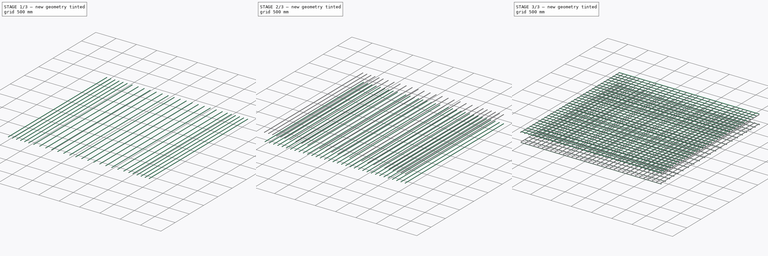
[diagram: build sequence overview — one tinted view per stage of 3, left to right]
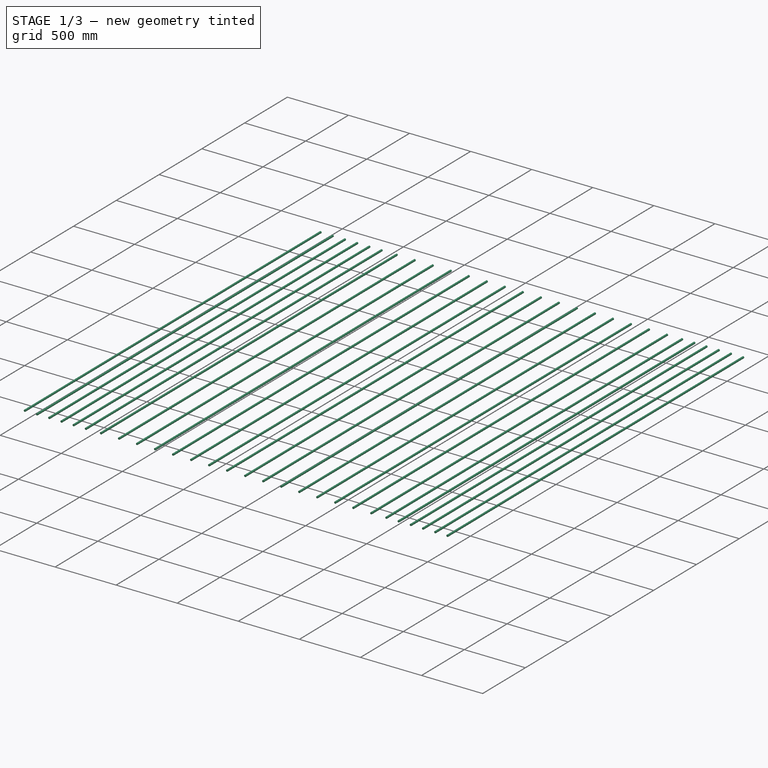
[diagram: stage 1 of 3 — iso view after this stage's code; geometry added in this stage tinted green]
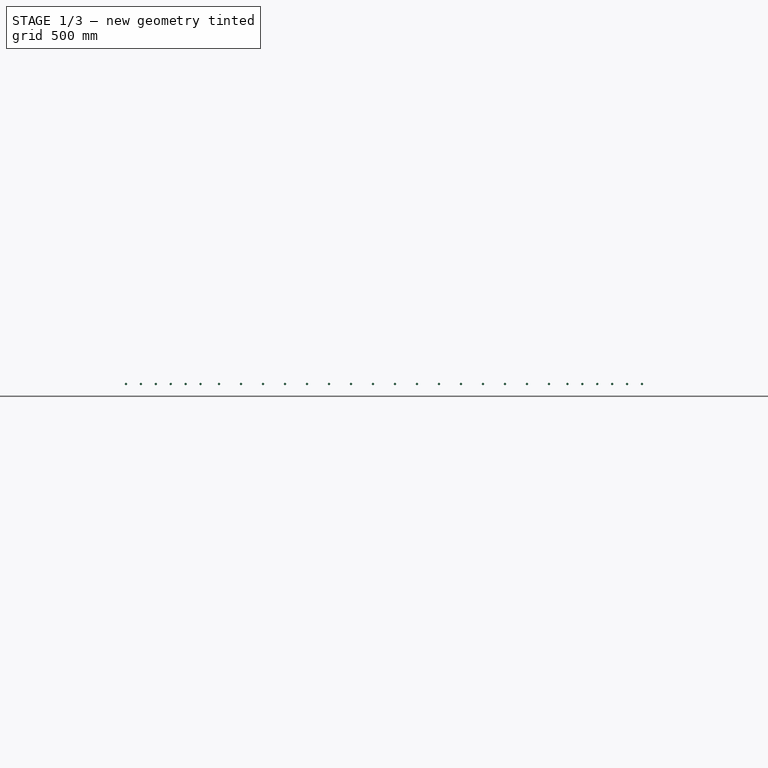
[diagram: stage 1 of 3 — front view after this stage's code; geometry added in this stage tinted green]
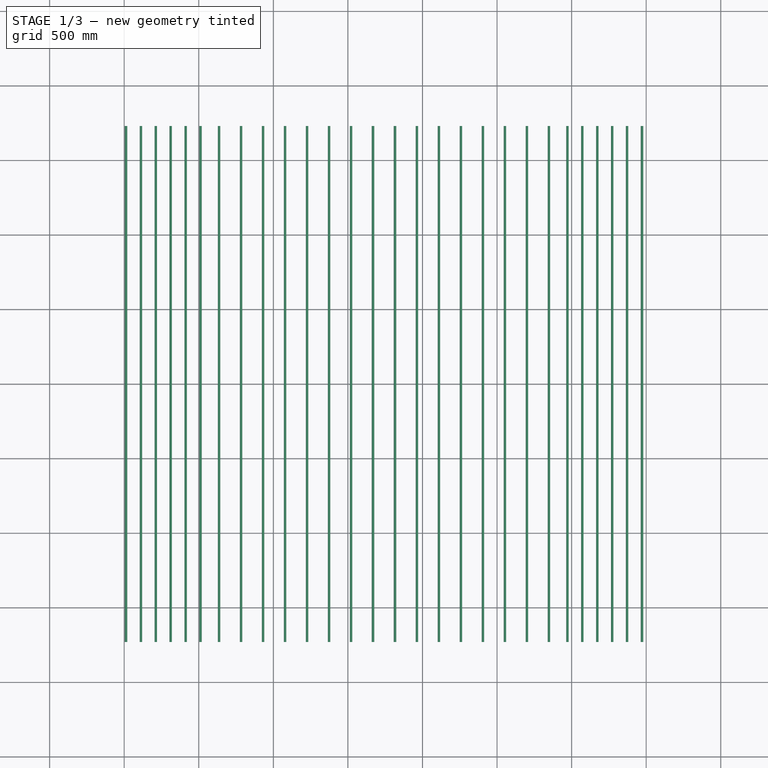
[diagram: stage 1 of 3 — top view after this stage's code; geometry added in this stage tinted green]
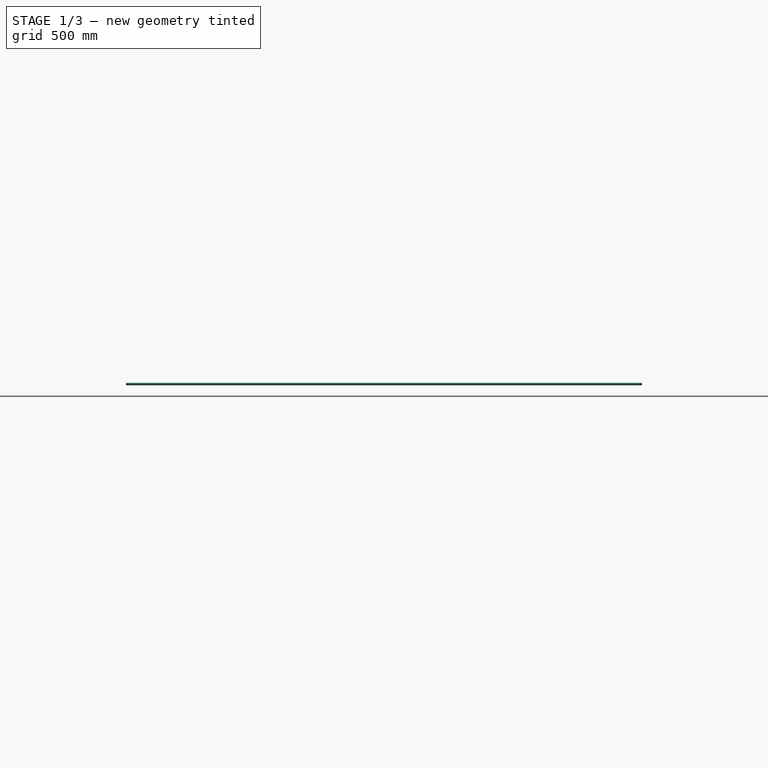
[diagram: stage 1 of 3 — right view after this stage's code; geometry added in this stage tinted green]
FCSTD DOCUMENT  (FreeCAD 0.19R20802 (Git))
Label: straight_rebar_drawing_dimensioning
License: All rights reserved
LicenseURL: http://en.wikipedia.org/wiki/All_rights_reserved
objects: TechDraw::DrawViewSymbolPython×60, TechDraw::DrawSVGTemplate×10, TechDraw::DrawPage×10, Part::FeaturePython×5, Sketcher::SketchObject×4
note: 9 computed .brp shape members not serialized (recipe doc carries the construction recipe); baked Part::Feature solids carry a one-line shape summary decoded from their .brp

FEATURE [Part::FeaturePython] Structure  label="Footing"  # Arch/BIM 77 (typed FeaturePython)
  FaceMaker = 0
  Height = 300
  HorizontalArea = 1.225e+07
  IfcData = attributes={"GlobalId": {"name": "GlobalId", "type": "IfcGloballyUniqueId", "is_enum": false, "enum_values": []}, "Description": {"... (+505 chars omitted),+1 more (map truncated)
  IfcType = 77
  Length = 3500
  MoveBase = false
  MoveWithHost = false
  Nodes = (2) [(0,1.21266e-14,5.55112e-16),(0,1.21266e-14,3500)]
  NodesOffset = 0
  Normal = (0,0,0)
  PerimeterLength = 14000
  PredefinedType = 1
  VerticalArea = 4200000
  Width = 3500
FEATURE [Sketcher::SketchObject] Sketch003
  MapMode = 5
  Placement = pos=(3500,0,0) rot=(0.57735,0.57735,0.57735;2.0944rad)
  Support = -> [Structure]
  sketch-geometry (1):
    g0: LineSegment StartX=-1730 StartY=102 StartZ=0 EndX=1730 EndY=102 EndZ=0
FEATURE [Part::FeaturePython] Rebar003  label="StraightRebar003"  # Arch/BIM 110 (typed FeaturePython)
  Amount = 28
  AmountCheck = false
  Base = -> Sketch003
  Cover = 40
  CoverAlong = Top Side
  CustomSpacing = 6@100.0+16@147.5+6@100.0
  Diameter = 16
  Direction = (0,0,0)
  Distance = 0
  FrontCover = 20
  HorizontalArea = 0
  Host = -> Structure
  IfcType = 110
  LeftBottomCover = 20
  Length = 3460
  Mark = Rebar
  MoveBase = false
  MoveWithHost = false
  OffsetEnd = 28
  OffsetStart = 28
  Orientation = Horizontal
  PerimeterLength = 0
  PlacementList = 28 placements: [(-28,0,0),(-128,0,0),(-228,0,0),(-328,0,0),(-428,0,0),(-528,0,0),(-651.75,0,0),(-799.25,0,0),(-946.75,0,0),(-1094.25,0,0),(-1241.75,0,0),(-1389.25,0,0),(-1536.75,0,0),(-1684.25,0,0),(-1831.75,0,0),(-1979.25,0,0),(-2126.75,0,0),(-2274.25,0,0),(-2421.75,0,0),(-2569.25,0,0),(-2716.75,0,0),(-2864.25,0,0),(-2988,0,0),(-3088,0,0),(-3188,0,0),(-3288,0,0),(-3388,0,0),(-3488,0,0)]
  RebarShape = 0
  RightTopCover = 20
  Rounding = 0
  Spacing = 0
  TotalLength = 96880
  TrueSpacing = 50
  VerticalArea = 0
FEATURE [TechDraw::DrawViewSymbolPython] ReinforcementDrawingView  label="Front View"  # drawing view (typed FeaturePython)
  DimensionBottomOffset = 25
  DimensionLeftOffset = 10
  DimensionRightOffset = 10
  DimensionTopOffset = 20
  Height = 300
  LeftOffset = 20
  LockPosition = false
  MaxHeight = 0
  MaxWidth = 0
  MinBottomOffset = 20
  MinRightOffset = 10
  PositionType = 0
  Rebars = -> [Rebar,Rebar001,Rebar002,Rebar003]
  RebarsColorStyle = 0
  RebarsStrokeWidth = 0.35
  Rotation = 0
  Scale = 0.111429
  ScaleType = 1
  Structure = -> Structure
  StructureColorStyle = 0
  StructureStrokeWidth = 0.5
  Symbol = <blob: 6845 chars omitted>
  Template = -> Template
  TopOffset = 50
  View = 0
  VisibleRebars = -> [Rebar,Rebar001,Rebar002,Rebar003]
  Width = 3500
  X = 215
  Y = 230.286
FEATURE [TechDraw::DrawViewSymbolPython] ReinforcementDimensioning  # drawing view (typed FeaturePython)
  DimensionBottomOffset = 10
  DimensionFormat = %M  %C⌀%D,span=%S
  DimensionLeftOffset = 10
  DimensionRightOffset = 10
  DimensionTopOffset = 10
  Font = DejaVu Sans
  FontSize = 5
  LineEndSymbol = 0
  LineMidPointSymbol = 1
  LineStartSymbol = 3
  LineStyle = 0
  LockPosition = false
  MultiRebar_LineEndSymbol = 0
  MultiRebar_LineStartSymbol = 0
  MultiRebar_OuterDimension = true
  MultiRebar_TextPositionType = 0
  OuterDimension = false
  ParentDrawingView = -> ReinforcementDrawingView
  Rebar = -> Rebar
  Rotation = 0
  Scale = 0.111429
  ScaleType = 2
  SingleRebar_LineEndSymbol = 0
  SingleRebar_LineStartSymbol = 3
  SingleRebar_OuterDimension = false
  SingleRebar_TextPositionType = 1
  StrokeWidth = 0.25
  Symbol = <svg version="1.1" xmlns="http://www.w3.org/2000/svg" xmlns:xlink="http://www.w3.org/1999/xlink" xmlns:freecad="http://www.freecadweb.org/wiki/index.php?title=Svg_Namespace" width="3500.0mm" height="300.0mm" viewBox="0 0 3500.0 300.0"><g transform="translate(0.0, 150.00000000000077)"><g><path d="M293.0 239.74358974358972 L293.0 121.99999999999966" style="stroke:#000080;stroke-width:2.2435897435897436;stroke-linecap:round;fill:none;" stroke-dasharray="" /><g id="line_mid_points" /><path d="M0,0 -8,-1.5 V1.5 L0,0" style="stroke:#000080;fill:#000080;stroke-width:2.2435897435897436;stroke-linecap:round;stroke-linejoin:bevel;" transform="translate(293.0 121.99999999999966) rotate(-90.0 0 0)" /></g><text x="293.0" y="262.1794871794872" style="white-space:pre;" fill="#005400" font-family="DejaVu Sans" font-size="44.87179487179487" text-anchor="middle" dominant-baseline="baseline" xml:space="preserve">sb  21⌀16,span=3460</text></g></svg>
  TextPositionType = 1
  WayPoints = (2) [(0,0,0),(50,0,0)]
  WayPointsType = 0
  X = 215
  Y = 230.286
FEATURE [TechDraw::DrawViewSymbolPython] ReinforcementDimensioning001  # drawing view (typed FeaturePython)
  DimensionBottomOffset = 15
  DimensionFormat = %M  %C⌀%D,span=%S
  DimensionLeftOffset = 10
  DimensionRightOffset = 10
  DimensionTopOffset = 10
  Font = DejaVu Sans
  FontSize = 5
  LineEndSymbol = 0
  LineMidPointSymbol = 1
  LineStartSymbol = 3
  LineStyle = 0
  LockPosition = false
  MultiRebar_LineEndSymbol = 0
  MultiRebar_LineStartSymbol = 0
  MultiRebar_OuterDimension = true
  MultiRebar_TextPositionType = 0
  OuterDimension = false
  ParentDrawingView = -> ReinforcementDrawingView
  Rebar = -> Rebar001
  Rotation = 0
  Scale = 0.111429
  ScaleType = 2
  SingleRebar_LineEndSymbol = 0
  SingleRebar_LineStartSymbol = 3
  SingleRebar_OuterDimension = false
  SingleRebar_TextPositionType = 1
  StrokeWidth = 0.25
  Symbol = <svg version="1.1" xmlns="http://www.w3.org/2000/svg" xmlns:xlink="http://www.w3.org/1999/xlink" xmlns:freecad="http://www.freecadweb.org/wiki/index.php?title=Svg_Namespace" width="3500.0mm" height="300.0mm" viewBox="0 0 3500.0 300.0"><g transform="translate(0.0, 150.00000000000077)"><g><path d="M959.0 -239.74358974359052 L959.0 -122.00000000000034" style="stroke:#000080;stroke-width:2.2435897435897436;stroke-linecap:round;fill:none;" stroke-dasharray="" /><g id="line_mid_points" /><path d="M0,0 -8,-1.5 V1.5 L0,0" style="stroke:#000080;fill:#000080;stroke-width:2.2435897435897436;stroke-linecap:round;stroke-linejoin:bevel;" transform="translate(959.0 -122.00000000000034) rotate(90.0 0 0)" /></g><text x="959.0" y="-239.74358974359052" style="white-space:pre;" fill="#005400" font-family="DejaVu Sans" font-size="44.87179487179487" text-anchor="middle" dominant-baseline="baseline" xml:space="preserve">st  34⌀16,span=3444</text></g></svg>
  TextPositionType = 1
  WayPoints = (2) [(0,0,0),(50,0,0)]
  WayPointsType = 0
  X = 215
  Y = 230.286
FEATURE [TechDraw::DrawViewSymbolPython] ReinforcementDrawingView001  label="Rear View"  # drawing view (typed FeaturePython)
  DimensionBottomOffset = 15
  DimensionLeftOffset = 10
  DimensionRightOffset = 10
  DimensionTopOffset = 25
  Height = 300
  LeftOffset = 20
  LockPosition = false
  MaxHeight = 0
  MaxWidth = 0
  MinBottomOffset = 20
  MinRightOffset = 10
  PositionType = 0
  Rebars = -> [Rebar,Rebar001,Rebar002,Rebar003]
  RebarsColorStyle = 0
  RebarsStrokeWidth = 0.35
  Rotation = 0
  Scale = 0.111429
  ScaleType = 1
  Structure = -> Structure
  StructureColorStyle = 0
  StructureStrokeWidth = 0.5
  Symbol = <blob: 6927 chars omitted>
  Template = -> Template
  TopOffset = 150
  View = 1
  VisibleRebars = -> [Rebar,Rebar001,Rebar002,Rebar003]
  Width = 3500
  X = 215
  Y = 130.286
FEATURE [TechDraw::DrawViewSymbolPython] ReinforcementDimensioning002  # drawing view (typed FeaturePython)
  DimensionBottomOffset = 10
  DimensionFormat = %M  %C⌀%D,span=%S
  DimensionLeftOffset = 10
  DimensionRightOffset = 10
  DimensionTopOffset = 10
  Font = DejaVu Sans
  FontSize = 5
  LineEndSymbol = 0
  LineMidPointSymbol = 1
  LineStartSymbol = 3
  LineStyle = 0
  LockPosition = false
  MultiRebar_LineEndSymbol = 0
  MultiRebar_LineStartSymbol = 0
  MultiRebar_OuterDimension = true
  MultiRebar_TextPositionType = 0
  OuterDimension = false
  ParentDrawingView = -> ReinforcementDrawingView001
  Rebar = -> Rebar
  Rotation = 0
  Scale = 0.111429
  ScaleType = 2
  SingleRebar_LineEndSymbol = 0
  SingleRebar_LineStartSymbol = 3
  SingleRebar_OuterDimension = false
  SingleRebar_TextPositionType = 1
  StrokeWidth = 0.25
  Symbol = <svg version="1.1" xmlns="http://www.w3.org/2000/svg" xmlns:xlink="http://www.w3.org/1999/xlink" xmlns:freecad="http://www.freecadweb.org/wiki/index.php?title=Svg_Namespace" width="3500.0mm" height="300.0mm" viewBox="0 0 3500.0 300.0"><g transform="translate(3500.0, 150.00000000000077)"><g><path d="M-2551.0 239.74358974358972 L-2551.0 121.99999999999966" style="stroke:#000080;stroke-width:2.2435897435897436;stroke-linecap:round;fill:none;" stroke-dasharray="" /><g id="line_mid_points" /><path d="M0,0 -8,-1.5 V1.5 L0,0" style="stroke:#000080;fill:#000080;stroke-width:2.2435897435897436;stroke-linecap:round;stroke-linejoin:bevel;" transform="translate(-2551.0 121.99999999999966) rotate(-90.0 0 0)" /></g><text x="-2551.0" y="262.1794871794872" style="white-space:pre;" fill="#005400" font-family="DejaVu Sans" font-size="44.87179487179487" text-anchor="middle" dominant-baseline="baseline" xml:space="preserve">sb  21⌀16,span=3460</text></g></svg>
  TextPositionType = 1
  WayPoints = (2) [(0,0,0),(50,0,0)]
  WayPointsType = 0
  X = 215
  Y = 130.286
FEATURE [TechDraw::DrawViewSymbolPython] ReinforcementDimensioning003  # drawing view (typed FeaturePython)
  DimensionBottomOffset = 15
  DimensionFormat = %M  %C⌀%D,span=%S
  DimensionLeftOffset = 10
  DimensionRightOffset = 10
  DimensionTopOffset = 10
  Font = DejaVu Sans
  FontSize = 5
  LineEndSymbol = 0
  LineMidPointSymbol = 1
  LineStartSymbol = 3
  LineStyle = 0
  LockPosition = false
  MultiRebar_LineEndSymbol = 0
  MultiRebar_LineStartSymbol = 0
  MultiRebar_OuterDimension = true
  MultiRebar_TextPositionType = 0
  OuterDimension = false
  ParentDrawingView = -> ReinforcementDrawingView001
  Rebar = -> Rebar001
  Rotation = 0
  Scale = 0.111429
  ScaleType = 2
  SingleRebar_LineEndSymbol = 0
  SingleRebar_LineStartSymbol = 3
  SingleRebar_OuterDimension = false
  SingleRebar_TextPositionType = 1
  StrokeWidth = 0.25
  Symbol = <svg version="1.1" xmlns="http://www.w3.org/2000/svg" xmlns:xlink="http://www.w3.org/1999/xlink" xmlns:freecad="http://www.freecadweb.org/wiki/index.php?title=Svg_Namespace" width="3500.0mm" height="300.0mm" viewBox="0 0 3500.0 300.0"><g transform="translate(3500.0, 150.00000000000077)"><g><path d="M-2744.0 -239.74358974359052 L-2744.0 -122.00000000000034" style="stroke:#000080;stroke-width:2.2435897435897436;stroke-linecap:round;fill:none;" stroke-dasharray="" /><g id="line_mid_points" /><path d="M0,0 -8,-1.5 V1.5 L0,0" style="stroke:#000080;fill:#000080;stroke-width:2.2435897435897436;stroke-linecap:round;stroke-linejoin:bevel;" transform="translate(-2744.0 -122.00000000000034) rotate(90.0 0 0)" /></g><text x="-2744.0" y="-239.74358974359052" style="white-space:pre;" fill="#005400" font-family="DejaVu Sans" font-size="44.87179487179487" text-anchor="middle" dominant-baseline="baseline" xml:space="preserve">st  34⌀16,span=3444</text></g></svg>
  TextPositionType = 1
  WayPoints = (2) [(0,0,0),(50,0,0)]
  WayPointsType = 0
  X = 215
  Y = 130.286
FEATURE [TechDraw::DrawViewSymbolPython] ReinforcementDrawingView002  label="Left View"  # drawing view (typed FeaturePython)
  DimensionBottomOffset = 20
  DimensionLeftOffset = 10
  DimensionRightOffset = 10
  DimensionTopOffset = 20
  Height = 300
  LeftOffset = 15
  LockPosition = false
  MaxHeight = 0
  MaxWidth = 0
  MinBottomOffset = 80
  MinRightOffset = 10
  PositionType = 0
  Rebars = -> [Rebar,Rebar001,Rebar002,Rebar003]
  RebarsColorStyle = 0
  RebarsStrokeWidth = 0.35
  Rotation = 0
  Scale = 0.112857
  ScaleType = 1
  Structure = -> Structure
  StructureColorStyle = 0
  StructureStrokeWidth = 0.5
  Symbol = <blob: 6528 chars omitted>
  Template = -> Template002
  TopOffset = 40
  View = 2
  VisibleRebars = -> [Rebar,Rebar001,Rebar002,Rebar003]
  Width = 3500
  X = 212.5
  Y = 240.071
FEATURE [TechDraw::DrawViewSymbolPython] ReinforcementDimensioning004  # drawing view (typed FeaturePython)
  DimensionBottomOffset = 10
  DimensionFormat = %M %C⌀%D,span=%S
  DimensionLeftOffset = 10
  DimensionRightOffset = 10
  DimensionTopOffset = 10
  Font = DejaVu Sans
  FontSize = 5
  LineEndSymbol = 0
  LineMidPointSymbol = 0
  LineStartSymbol = 0
  LineStyle = 0
  LockPosition = false
  MultiRebar_LineEndSymbol = 0
  MultiRebar_LineStartSymbol = 0
  MultiRebar_OuterDimension = true
  MultiRebar_TextPositionType = 0
  OuterDimension = true
  ParentDrawingView = -> ReinforcementDrawingView002
  Rebar = -> Rebar
  Rotation = 0
  Scale = 0.112857
  ScaleType = 2
  SingleRebar_LineEndSymbol = 0
  SingleRebar_LineStartSymbol = 3
  SingleRebar_OuterDimension = false
  SingleRebar_TextPositionType = 1
  StrokeWidth = 0.25
  Symbol = <blob: 7778 chars omitted>
  TextPositionType = 0
  WayPoints = (2) [(0,0,0),(50,0,0)]
  WayPointsType = 0
  X = 212.5
  Y = 240.071
FEATURE [TechDraw::DrawViewSymbolPython] ReinforcementDimensioning005  # drawing view (typed FeaturePython)
  DimensionBottomOffset = 15
  DimensionFormat = %M %C⌀%D,span=%S
  DimensionLeftOffset = 10
  DimensionRightOffset = 10
  DimensionTopOffset = 10
  Font = DejaVu Sans
  FontSize = 5
  LineEndSymbol = 0
  LineMidPointSymbol = 0
  LineStartSymbol = 0
  LineStyle = 0
  LockPosition = false
  MultiRebar_LineEndSymbol = 0
  MultiRebar_LineStartSymbol = 0
  MultiRebar_OuterDimension = true
  MultiRebar_TextPositionType = 0
  OuterDimension = true
  ParentDrawingView = -> ReinforcementDrawingView002
  Rebar = -> Rebar001
  Rotation = 0
  Scale = 0.112857
  ScaleType = 2
  SingleRebar_LineEndSymbol = 0
  SingleRebar_LineStartSymbol = 3
  SingleRebar_OuterDimension = false
  SingleRebar_TextPositionType = 1
  StrokeWidth = 0.25
  Symbol = <blob: 8616 chars omitted>
  TextPositionType = 0
  WayPoints = (2) [(0,0,0),(50,0,0)]
  WayPointsType = 0
  X = 212.5
  Y = 240.071
FEATURE [TechDraw::DrawViewSymbolPython] ReinforcementDrawingView003  label="Right View"  # drawing view (typed FeaturePython)
  DimensionBottomOffset = 20
  DimensionLeftOffset = 10
  DimensionRightOffset = 10
  DimensionTopOffset = 20
  Height = 300
  LeftOffset = 15
  LockPosition = false
  MaxHeight = 0
  MaxWidth = 0
  MinBottomOffset = 80
  MinRightOffset = 10
  PositionType = 0
  Rebars = -> [Rebar,Rebar001,Rebar002,Rebar003]
  RebarsColorStyle = 0
  RebarsStrokeWidth = 0.35
  Rotation = 0
  Scale = 0.112857
  ScaleType = 1
  Structure = -> Structure
  StructureColorStyle = 0
  StructureStrokeWidth = 0.5
  Symbol = <blob: 6527 chars omitted>
  Template = -> Template002
  TopOffset = 150
  View = 3
  VisibleRebars = -> [Rebar,Rebar001,Rebar002,Rebar003]
  Width = 3500
  X = 212.5
  Y = 130.071
FEATURE [TechDraw::DrawViewSymbolPython] ReinforcementDimensioning006  # drawing view (typed FeaturePython)
  DimensionBottomOffset = 10
  DimensionFormat = %M  %C⌀%D,span=%S
  DimensionLeftOffset = 10
  DimensionRightOffset = 10
  DimensionTopOffset = 10
  Font = DejaVu Sans
  FontSize = 5
  LineEndSymbol = 0
  LineMidPointSymbol = 0
  LineStartSymbol = 0
  LineStyle = 0
  LockPosition = false
  MultiRebar_LineEndSymbol = 0
  MultiRebar_LineStartSymbol = 0
  MultiRebar_OuterDimension = true
  MultiRebar_TextPositionType = 0
  OuterDimension = true
  ParentDrawingView = -> ReinforcementDrawingView003
  Rebar = -> Rebar
  Rotation = 0
  Scale = 0.112857
  ScaleType = 2
  SingleRebar_LineEndSymbol = 0
  SingleRebar_LineStartSymbol = 3
  SingleRebar_OuterDimension = false
  SingleRebar_TextPositionType = 1
  StrokeWidth = 0.25
  Symbol = <blob: 7738 chars omitted>
  TextPositionType = 0
  WayPoints = (2) [(0,0,0),(50,0,0)]
  WayPointsType = 0
  X = 212.5
  Y = 130.071
FEATURE [TechDraw::DrawViewSymbolPython] ReinforcementDimensioning007  # drawing view (typed FeaturePython)
  DimensionBottomOffset = 15
  DimensionFormat = %M  %C⌀%D,span=%S
  DimensionLeftOffset = 10
  DimensionRightOffset = 10
  DimensionTopOffset = 10
  Font = DejaVu Sans
  FontSize = 5
  LineEndSymbol = 0
  LineMidPointSymbol = 0
  LineStartSymbol = 0
  LineStyle = 0
  LockPosition = false
  MultiRebar_LineEndSymbol = 0
  MultiRebar_LineStartSymbol = 0
  MultiRebar_OuterDimension = true
  MultiRebar_TextPositionType = 0
  OuterDimension = true
  ParentDrawingView = -> ReinforcementDrawingView003
  Rebar = -> Rebar001
  Rotation = 0
  Scale = 0.112857
  ScaleType = 2
  SingleRebar_LineEndSymbol = 0
  SingleRebar_LineStartSymbol = 3
  SingleRebar_OuterDimension = false
  SingleRebar_TextPositionType = 1
  StrokeWidth = 0.25
  Symbol = <blob: 8550 chars omitted>
  TextPositionType = 0
  WayPoints = (2) [(0,0,0),(50,0,0)]
  WayPointsType = 0
  X = 212.5
  Y = 130.071
FEATURE [TechDraw::DrawViewSymbolPython] ReinforcementDrawingView004  label="Top View"  # drawing view (typed FeaturePython)
  DimensionBottomOffset = 20
  DimensionLeftOffset = 10
  DimensionRightOffset = 20
  DimensionTopOffset = 10
  Height = 3500
  LeftOffset = 50
  LockPosition = false
  MaxHeight = 0
  MaxWidth = 0
  MinBottomOffset = 15
  MinRightOffset = 0
  PositionType = 0
  Rebars = -> [Rebar,Rebar001,Rebar002,Rebar003]
  RebarsColorStyle = 0
  RebarsStrokeWidth = 0.35
  Rotation = 0
  Scale = 0.0777143
  ScaleType = 1
  Structure = -> Structure
  StructureColorStyle = 0
  StructureStrokeWidth = 0.5
  Symbol = <blob: 16606 chars omitted>
  Template = -> Template004
  TopOffset = 10
  View = 4
  VisibleRebars = -> [Rebar,Rebar001,Rebar002,Rebar003]
  Width = 3500
  X = 186
  Y = 151
FEATURE [TechDraw::DrawViewSymbolPython] ReinforcementDimensioning008  # drawing view (typed FeaturePython)
  DimensionBottomOffset = 10
  DimensionFormat = %M %C⌀%D,sp=%S
  DimensionLeftOffset = 10
  DimensionRightOffset = 10
  DimensionTopOffset = 10
  Font = DejaVu Sans
  FontSize = 4
  LineEndSymbol = 0
  LineMidPointSymbol = 0
  LineStartSymbol = 0
  LineStyle = 0
  LockPosition = false
  MultiRebar_LineEndSymbol = 0
  MultiRebar_LineStartSymbol = 0
  MultiRebar_OuterDimension = true
  MultiRebar_TextPositionType = 0
  OuterDimension = true
  ParentDrawingView = -> ReinforcementDrawingView004
  Rebar = -> Rebar
  Rotation = 0
  Scale = 0.0777143
  ScaleType = 2
  SingleRebar_LineEndSymbol = 0
  SingleRebar_LineStartSymbol = 3
  SingleRebar_OuterDimension = false
  SingleRebar_TextPositionType = 1
  StrokeWidth = 0.25
  Symbol = <blob: 7744 chars omitted>
  TextPositionType = 0
  WayPoints = (2) [(0,0,0),(50,0,0)]
  WayPointsType = 0
  X = 186
  Y = 151
FEATURE [TechDraw::DrawViewSymbolPython] ReinforcementDimensioning009  # drawing view (typed FeaturePython)
  DimensionBottomOffset = 10
  DimensionFormat = %M %C⌀%D,sp=%S
  DimensionLeftOffset = 10
  DimensionRightOffset = 15
  DimensionTopOffset = 10
  Font = DejaVu Sans
  FontSize = 4
  LineEndSymbol = 0
  LineMidPointSymbol = 0
  LineStartSymbol = 0
  LineStyle = 0
  LockPosition = false
  MultiRebar_LineEndSymbol = 0
  MultiRebar_LineStartSymbol = 0
  MultiRebar_OuterDimension = true
  MultiRebar_TextPositionType = 0
  OuterDimension = true
  ParentDrawingView = -> ReinforcementDrawingView004
  Rebar = -> Rebar001
  Rotation = 0
  Scale = 0.0777143
  ScaleType = 2
  SingleRebar_LineEndSymbol = 0
  SingleRebar_LineStartSymbol = 3
  SingleRebar_OuterDimension = false
  SingleRebar_TextPositionType = 1
  StrokeWidth = 0.25
  Symbol = <blob: 8490 chars omitted>
  TextPositionType = 0
  WayPoints = (2) [(0,0,0),(50,0,0)]
  WayPointsType = 0
  X = 186
  Y = 151
FEATURE [TechDraw::DrawViewSymbolPython] ReinforcementDrawingView005  label="Bottom View"  # drawing view (typed FeaturePython)
  DimensionBottomOffset = 20
  DimensionLeftOffset = 10
  DimensionRightOffset = 20
  DimensionTopOffset = 10
  Height = 3500
  LeftOffset = 50
  LockPosition = false
  MaxHeight = 0
  MaxWidth = 0
  MinBottomOffset = 15
  MinRightOffset = 15
  PositionType = 0
  Rebars = -> [Rebar,Rebar001,Rebar002,Rebar003]
  RebarsColorStyle = 0
  RebarsStrokeWidth = 0.35
  Rotation = 0
  Scale = 0.0777143
  ScaleType = 1
  Structure = -> Structure
  StructureColorStyle = 0
  StructureStrokeWidth = 0.5
  Symbol = <blob: 16602 chars omitted>
  Template = -> Template005
  TopOffset = 10
  View = 5
  VisibleRebars = -> [Rebar,Rebar001,Rebar002,Rebar003]
  Width = 3500
  X = 186
  Y = 151
FEATURE [TechDraw::DrawViewSymbolPython] ReinforcementDimensioning010  # drawing view (typed FeaturePython)
  DimensionBottomOffset = 10
  DimensionFormat = %M %C⌀%D,sp=%S
  DimensionLeftOffset = 10
  DimensionRightOffset = 10
  DimensionTopOffset = 10
  Font = DejaVu Sans
  FontSize = 4
  LineEndSymbol = 0
  LineMidPointSymbol = 1
  LineStartSymbol = 0
  LineStyle = 0
  LockPosition = false
  MultiRebar_LineEndSymbol = 0
  MultiRebar_LineStartSymbol = 0
  MultiRebar_OuterDimension = true
  MultiRebar_TextPositionType = 0
  OuterDimension = true
  ParentDrawingView = -> ReinforcementDrawingView005
  Rebar = -> Rebar
  Rotation = 0
  Scale = 0.0777143
  ScaleType = 2
  SingleRebar_LineEndSymbol = 0
  SingleRebar_LineStartSymbol = 3
  SingleRebar_OuterDimension = false
  SingleRebar_TextPositionType = 1
  StrokeWidth = 0.25
  Symbol = <blob: 6883 chars omitted>
  TextPositionType = 0
  WayPoints = (2) [(0,0,0),(50,0,0)]
  WayPointsType = 0
  X = 186
  Y = 151
FEATURE [TechDraw::DrawViewSymbolPython] ReinforcementDimensioning011  # drawing view (typed FeaturePython)
  DimensionBottomOffset = 10
  DimensionFormat = %M %C⌀%D,sp=%S
  DimensionLeftOffset = 10
  DimensionRightOffset = 15
  DimensionTopOffset = 10
  Font = DejaVu Sans
  FontSize = 4
  LineEndSymbol = 0
  LineMidPointSymbol = 1
  LineStartSymbol = 0
  LineStyle = 0
  LockPosition = false
  MultiRebar_LineEndSymbol = 0
  MultiRebar_LineStartSymbol = 0
  MultiRebar_OuterDimension = true
  MultiRebar_TextPositionType = 0
  OuterDimension = true
  ParentDrawingView = -> ReinforcementDrawingView005
  Rebar = -> Rebar001
  Rotation = 0
  Scale = 0.0777143
  ScaleType = 2
  SingleRebar_LineEndSymbol = 0
  SingleRebar_LineStartSymbol = 3
  SingleRebar_OuterDimension = false
  SingleRebar_TextPositionType = 1
  StrokeWidth = 0.25
  Symbol = <blob: 7097 chars omitted>
  TextPositionType = 0
  WayPoints = (2) [(0,0,0),(50,0,0)]
  WayPointsType = 0
  X = 186
  Y = 151
FEATURE [TechDraw::DrawViewSymbolPython] ReinforcementDimensioning012  # drawing view (typed FeaturePython)
  DimensionBottomOffset = 20
  DimensionFormat = %M  %C⌀%D,span=%S
  DimensionLeftOffset = 10
  DimensionRightOffset = 10
  DimensionTopOffset = 15
  Font = DejaVu Sans
  FontSize = 5
  LineEndSymbol = 0
  LineMidPointSymbol = 1
  LineStartSymbol = 0
  LineStyle = 0
  LockPosition = false
  MultiRebar_LineEndSymbol = 0
  MultiRebar_LineStartSymbol = 0
  MultiRebar_OuterDimension = true
  MultiRebar_TextPositionType = 0
  OuterDimension = true
  ParentDrawingView = -> ReinforcementDrawingView
  Rebar = -> Rebar002
  Rotation = 0
  Scale = 0.111429
  ScaleType = 2
  SingleRebar_LineEndSymbol = 0
  SingleRebar_LineStartSymbol = 3
  SingleRebar_OuterDimension = false
  SingleRebar_TextPositionType = 1
  StrokeWidth = 0.25
  Symbol = <blob: 7157 chars omitted>
  TextPositionType = 0
  WayPoints = (2) [(0,0,0),(50,0,0)]
  WayPointsType = 0
  X = 215
  Y = 230.286
FEATURE [TechDraw::DrawViewSymbolPython] ReinforcementDimensioning013  # drawing view (typed FeaturePython)
  DimensionBottomOffset = 25
  DimensionFormat = %M  %C⌀%D,span=%S
  DimensionLeftOffset = 10
  DimensionRightOffset = 10
  DimensionTopOffset = 15
  Font = DejaVu Sans
  FontSize = 5
  LineEndSymbol = 0
  LineMidPointSymbol = 1
  LineStartSymbol = 0
  LineStyle = 0
  LockPosition = false
  MultiRebar_LineEndSymbol = 0
  MultiRebar_LineStartSymbol = 0
  MultiRebar_OuterDimension = true
  MultiRebar_TextPositionType = 0
  OuterDimension = true
  ParentDrawingView = -> ReinforcementDrawingView
  Rebar = -> Rebar003
  Rotation = 0
  Scale = 0.111429
  ScaleType = 2
  SingleRebar_LineEndSymbol = 0
  SingleRebar_LineStartSymbol = 3
  SingleRebar_OuterDimension = false
  SingleRebar_TextPositionType = 1
  StrokeWidth = 0.25
  Symbol = <blob: 7520 chars omitted>
  TextPositionType = 0
  WayPoints = (2) [(0,0,0),(50,0,0)]
  WayPointsType = 0
  X = 215
  Y = 230.286
FEATURE [TechDraw::DrawViewSymbolPython] ReinforcementDimensioning014  # drawing view (typed FeaturePython)
  DimensionBottomOffset = 15
  DimensionFormat = %M  %C⌀%D,span=%S
  DimensionLeftOffset = 10
  DimensionRightOffset = 10
  DimensionTopOffset = 15
  Font = DejaVu Sans
  FontSize = 5
  LineEndSymbol = 0
  LineMidPointSymbol = 1
  LineStartSymbol = 0
  LineStyle = 0
  LockPosition = false
  MultiRebar_LineEndSymbol = 0
  MultiRebar_LineStartSymbol = 0
  MultiRebar_OuterDimension = true
  MultiRebar_TextPositionType = 0
  OuterDimension = true
  ParentDrawingView = -> ReinforcementDrawingView001
  Rebar = -> Rebar003
  Rotation = 0
  Scale = 0.111429
  ScaleType = 2
  SingleRebar_LineEndSymbol = 0
  SingleRebar_LineStartSymbol = 3
  SingleRebar_OuterDimension = false
  SingleRebar_TextPositionType = 1
  StrokeWidth = 0.25
  Symbol = <blob: 7550 chars omitted>
  TextPositionType = 0
  WayPoints = (2) [(0,0,0),(50,0,0)]
  WayPointsType = 0
  X = 215
  Y = 130.286
FEATURE [TechDraw::DrawViewSymbolPython] ReinforcementDimensioning015  # drawing view (typed FeaturePython)
  DimensionBottomOffset = 15
  DimensionFormat = %M  %C⌀%D,span=%S
  DimensionLeftOffset = 10
  DimensionRightOffset = 10
  DimensionTopOffset = 20
  Font = DejaVu Sans
  FontSize = 5
  LineEndSymbol = 0
  LineMidPointSymbol = 1
  LineStartSymbol = 0
  LineStyle = 0
  LockPosition = false
  MultiRebar_LineEndSymbol = 0
  MultiRebar_LineStartSymbol = 0
  MultiRebar_OuterDimension = true
  MultiRebar_TextPositionType = 0
  OuterDimension = true
  ParentDrawingView = -> ReinforcementDrawingView001
  Rebar = -> Rebar002
  Rotation = 0
  Scale = 0.111429
  ScaleType = 2
  SingleRebar_LineEndSymbol = 0
  SingleRebar_LineStartSymbol = 3
  SingleRebar_OuterDimension = false
  SingleRebar_TextPositionType = 1
  StrokeWidth = 0.25
  Symbol = <blob: 7167 chars omitted>
  TextPositionType = 0
  WayPoints = (2) [(0,0,0),(50,0,0)]
  WayPointsType = 0
  X = 215
  Y = 130.286
FEATURE [TechDraw::DrawPage] TechDraw__DrawPage  label="Footing Drawing"
  KeepUpdated = true
  NextBalloonIndex = 1
  ProjectionType = 0
  Template = -> Template
  Views = -> [ReinforcementDrawingView,ReinforcementDimensioning,ReinforcementDimensioning001,ReinforcementDimensioning012,ReinforcementDimensioning013,ReinforcementDimensioning014,ReinforcementDimensioning015,ReinforcementDimensioning002,ReinforcementDimensioning003,ReinforcementDrawingView001]
FEATURE [TechDraw::DrawViewSymbolPython] ReinforcementDimensioning016  # drawing view (typed FeaturePython)
  DimensionBottomOffset = 15
  DimensionFormat = %M  %C⌀%D,span=%S
  DimensionLeftOffset = 10
  DimensionRightOffset = 10
  DimensionTopOffset = 15
  Font = DejaVu Sans
  FontSize = 5
  LineEndSymbol = 0
  LineMidPointSymbol = 1
  LineStartSymbol = 3
  LineStyle = 0
  LockPosition = false
  MultiRebar_LineEndSymbol = 0
  MultiRebar_LineStartSymbol = 0
  MultiRebar_OuterDimension = true
  MultiRebar_TextPositionType = 0
  OuterDimension = false
  ParentDrawingView = -> ReinforcementDrawingView002
  Rebar = -> Rebar003
  Rotation = 0
  Scale = 0.112857
  ScaleType = 2
  SingleRebar_LineEndSymbol = 0
  SingleRebar_LineStartSymbol = 3
  SingleRebar_OuterDimension = false
  SingleRebar_TextPositionType = 1
  StrokeWidth = 0.25
  Symbol = <svg version="1.1" xmlns="http://www.w3.org/2000/svg" xmlns:xlink="http://www.w3.org/1999/xlink" xmlns:freecad="http://www.freecadweb.org/wiki/index.php?title=Svg_Namespace" width="3500.0mm" height="300.0mm" viewBox="0 0 3500.0 300.0"><g transform="translate(1750.0, 150.00000000000077)"><g><path d="M-852.0 -282.9113924050641 L-852.0 -102.00000000000077" style="stroke:#000080;stroke-width:2.2151898734177218;stroke-linecap:round;fill:none;" stroke-dasharray="" /><g id="line_mid_points" /><path d="M0,0 -8,-1.5 V1.5 L0,0" style="stroke:#000080;fill:#000080;stroke-width:2.2151898734177218;stroke-linecap:round;stroke-linejoin:bevel;" transform="translate(-852.0 -102.00000000000077) rotate(90.0 0 0)" /></g><text x="-852.0" y="-282.9113924050641" style="white-space:pre;" fill="#005400" font-family="DejaVu Sans" font-size="44.30379746835443" text-anchor="middle" dominant-baseline="baseline" xml:space="preserve">Rebar  28⌀16,span=3460</text></g></svg>
  TextPositionType = 1
  WayPoints = (2) [(0,0,0),(50,0,0)]
  WayPointsType = 0
  X = 212.5
  Y = 240.071
FEATURE [TechDraw::DrawViewSymbolPython] ReinforcementDimensioning017  # drawing view (typed FeaturePython)
  DimensionBottomOffset = 15
  DimensionFormat = %M  %C⌀%D,span=%S
  DimensionLeftOffset = 10
  DimensionRightOffset = 10
  DimensionTopOffset = 20
  Font = DejaVu Sans
  FontSize = 5
  LineEndSymbol = 0
  LineMidPointSymbol = 1
  LineStartSymbol = 3
  LineStyle = 0
  LockPosition = false
  MultiRebar_LineEndSymbol = 0
  MultiRebar_LineStartSymbol = 0
  MultiRebar_OuterDimension = true
  MultiRebar_TextPositionType = 0
  OuterDimension = false
  ParentDrawingView = -> ReinforcementDrawingView002
  Rebar = -> Rebar002
  Rotation = 0
  Scale = 0.112857
  ScaleType = 2
  SingleRebar_LineEndSymbol = 0
  SingleRebar_LineStartSymbol = 3
  SingleRebar_OuterDimension = false
  SingleRebar_TextPositionType = 1
  StrokeWidth = 0.25
  Symbol = <svg version="1.1" xmlns="http://www.w3.org/2000/svg" xmlns:xlink="http://www.w3.org/1999/xlink" xmlns:freecad="http://www.freecadweb.org/wiki/index.php?title=Svg_Namespace" width="3500.0mm" height="300.0mm" viewBox="0 0 3500.0 300.0"><g transform="translate(1750.0, 150.00000000000077)"><g><path d="M-588.0 282.91139240506334 L-588.0 101.99999999999923" style="stroke:#000080;stroke-width:2.2151898734177218;stroke-linecap:round;fill:none;" stroke-dasharray="" /><g id="line_mid_points" /><path d="M0,0 -8,-1.5 V1.5 L0,0" style="stroke:#000080;fill:#000080;stroke-width:2.2151898734177218;stroke-linecap:round;stroke-linejoin:bevel;" transform="translate(-588.0 101.99999999999923) rotate(-90.0 0 0)" /></g><text x="-588.0" y="305.06329113924056" style="white-space:pre;" fill="#005400" font-family="DejaVu Sans" font-size="44.30379746835443" text-anchor="middle" dominant-baseline="baseline" xml:space="preserve">Rebar  34⌀16,span=3444</text></g></svg>
  TextPositionType = 1
  WayPoints = (2) [(0,0,0),(50,0,0)]
  WayPointsType = 0
  X = 212.5
  Y = 240.071
FEATURE [TechDraw::DrawViewSymbolPython] ReinforcementDimensioning018  # drawing view (typed FeaturePython)
  DimensionBottomOffset = 15
  DimensionFormat = %M  %C⌀%D,span=%S
  DimensionLeftOffset = 10
  DimensionRightOffset = 10
  DimensionTopOffset = 15
  Font = DejaVu Sans
  FontSize = 5
  LineEndSymbol = 0
  LineMidPointSymbol = 1
  LineStartSymbol = 3
  LineStyle = 0
  LockPosition = false
  MultiRebar_LineEndSymbol = 0
  MultiRebar_LineStartSymbol = 0
  MultiRebar_OuterDimension = true
  MultiRebar_TextPositionType = 0
  OuterDimension = false
  ParentDrawingView = -> ReinforcementDrawingView003
  Rebar = -> Rebar002
  Rotation = 0
  Scale = 0.112857
  ScaleType = 2
  SingleRebar_LineEndSymbol = 0
  SingleRebar_LineStartSymbol = 3
  SingleRebar_OuterDimension = false
  SingleRebar_TextPositionType = 1
  StrokeWidth = 0.25
  Symbol = <svg version="1.1" xmlns="http://www.w3.org/2000/svg" xmlns:xlink="http://www.w3.org/1999/xlink" xmlns:freecad="http://www.freecadweb.org/wiki/index.php?title=Svg_Namespace" width="3500.0mm" height="300.0mm" viewBox="0 0 3500.0 300.0"><g transform="translate(1750.0, 150.00000000000077)"><g><path d="M-424.0 282.91139240506334 L-424.0 101.99999999999923" style="stroke:#000080;stroke-width:2.2151898734177218;stroke-linecap:round;fill:none;" stroke-dasharray="" /><g id="line_mid_points" /><path d="M0,0 -8,-1.5 V1.5 L0,0" style="stroke:#000080;fill:#000080;stroke-width:2.2151898734177218;stroke-linecap:round;stroke-linejoin:bevel;" transform="translate(-424.0 101.99999999999923) rotate(-90.0 0 0)" /></g><text x="-424.0" y="305.06329113924056" style="white-space:pre;" fill="#005400" font-family="DejaVu Sans" font-size="44.30379746835443" text-anchor="middle" dominant-baseline="baseline" xml:space="preserve">Rebar  34⌀16,span=3444</text></g></svg>
  TextPositionType = 1
  WayPoints = (2) [(0,0,0),(50,0,0)]
  WayPointsType = 0
  X = 212.5
  Y = 130.071
FEATURE [TechDraw::DrawViewSymbolPython] ReinforcementDimensioning019  # drawing view (typed FeaturePython)
  DimensionBottomOffset = 20
  DimensionFormat = %M  %C⌀%D,span=%S
  DimensionLeftOffset = 10
  DimensionRightOffset = 10
  DimensionTopOffset = 15
  Font = DejaVu Sans
  FontSize = 5
  LineEndSymbol = 0
  LineMidPointSymbol = 1
  LineStartSymbol = 3
  LineStyle = 0
  LockPosition = false
  MultiRebar_LineEndSymbol = 0
  MultiRebar_LineStartSymbol = 0
  MultiRebar_OuterDimension = true
  MultiRebar_TextPositionType = 0
  OuterDimension = false
  ParentDrawingView = -> ReinforcementDrawingView003
  Rebar = -> Rebar003
  Rotation = 0
  Scale = 0.112857
  ScaleType = 2
  SingleRebar_LineEndSymbol = 0
  SingleRebar_LineStartSymbol = 3
  SingleRebar_OuterDimension = false
  SingleRebar_TextPositionType = 1
  StrokeWidth = 0.25
  Symbol = <svg version="1.1" xmlns="http://www.w3.org/2000/svg" xmlns:xlink="http://www.w3.org/1999/xlink" xmlns:freecad="http://www.freecadweb.org/wiki/index.php?title=Svg_Namespace" width="3500.0mm" height="300.0mm" viewBox="0 0 3500.0 300.0"><g transform="translate(1750.0, 150.00000000000077)"><g><path d="M-995.0 -282.9113924050641 L-995.0 -102.00000000000077" style="stroke:#000080;stroke-width:2.2151898734177218;stroke-linecap:round;fill:none;" stroke-dasharray="" /><g id="line_mid_points" /><path d="M0,0 -8,-1.5 V1.5 L0,0" style="stroke:#000080;fill:#000080;stroke-width:2.2151898734177218;stroke-linecap:round;stroke-linejoin:bevel;" transform="translate(-995.0 -102.00000000000077) rotate(90.0 0 0)" /></g><text x="-995.0" y="-282.9113924050641" style="white-space:pre;" fill="#005400" font-family="DejaVu Sans" font-size="44.30379746835443" text-anchor="middle" dominant-baseline="baseline" xml:space="preserve">Rebar  28⌀16,span=3460</text></g></svg>
  TextPositionType = 1
  WayPoints = (2) [(0,0,0),(50,0,0)]
  WayPointsType = 0
  X = 212.5
  Y = 130.071
FEATURE [TechDraw::DrawPage] TechDraw__DrawPage002  label="Footing Drawing002"
  KeepUpdated = true
  NextBalloonIndex = 1
  ProjectionType = 0
  Template = -> Template002
  Views = -> [ReinforcementDrawingView002,ReinforcementDimensioning004,ReinforcementDimensioning005,ReinforcementDimensioning016,ReinforcementDimensioning017,ReinforcementDrawingView003,ReinforcementDimensioning006,ReinforcementDimensioning007,ReinforcementDimensioning018,ReinforcementDimensioning019]
FEATURE [TechDraw::DrawViewSymbolPython] ReinforcementDimensioning020  # drawing view (typed FeaturePython)
  DimensionBottomOffset = 10
  DimensionFormat = %M  %C⌀%D,span=%S
  DimensionLeftOffset = 10
  DimensionRightOffset = 20
  DimensionTopOffset = 10
  Font = DejaVu Sans
  FontSize = 3
  LineEndSymbol = 0
  LineMidPointSymbol = 1
  LineStartSymbol = 0
  LineStyle = 0
  LockPosition = false
  MultiRebar_LineEndSymbol = 0
  MultiRebar_LineStartSymbol = 0
  MultiRebar_OuterDimension = true
  MultiRebar_TextPositionType = 0
  OuterDimension = true
  ParentDrawingView = -> ReinforcementDrawingView004
  Rebar = -> Rebar003
  Rotation = 0
  Scale = 0.0777143
  ScaleType = 2
  SingleRebar_LineEndSymbol = 0
  SingleRebar_LineStartSymbol = 3
  SingleRebar_OuterDimension = false
  SingleRebar_TextPositionType = 1
  StrokeWidth = 0.25
  Symbol = <blob: 7534 chars omitted>
  TextPositionType = 0
  WayPoints = (2) [(0,0,0),(50,0,0)]
  WayPointsType = 0
  X = 186
  Y = 151
FEATURE [TechDraw::DrawViewSymbolPython] ReinforcementDimensioning021  # drawing view (typed FeaturePython)
  DimensionBottomOffset = 15
  DimensionFormat = %M  %C⌀%D,span=%S
  DimensionLeftOffset = 10
  DimensionRightOffset = 20
  DimensionTopOffset = 10
  Font = DejaVu Sans
  FontSize = 3
  LineEndSymbol = 0
  LineMidPointSymbol = 1
  LineStartSymbol = 0
  LineStyle = 0
  LockPosition = false
  MultiRebar_LineEndSymbol = 0
  MultiRebar_LineStartSymbol = 0
  MultiRebar_OuterDimension = true
  MultiRebar_TextPositionType = 0
  OuterDimension = true
  ParentDrawingView = -> ReinforcementDrawingView004
  Rebar = -> Rebar002
  Rotation = 0
  Scale = 0.0777143
  ScaleType = 2
  SingleRebar_LineEndSymbol = 0
  SingleRebar_LineStartSymbol = 3
  SingleRebar_OuterDimension = false
  SingleRebar_TextPositionType = 1
  StrokeWidth = 0.25
  Symbol = <blob: 7097 chars omitted>
  TextPositionType = 0
  WayPoints = (2) [(0,0,0),(50,0,0)]
  WayPointsType = 0
  X = 186
  Y = 151
FEATURE [TechDraw::DrawPage] TechDraw__DrawPage004  label="Footing Drawing004"
  KeepUpdated = true
  NextBalloonIndex = 1
  ProjectionType = 0
  Template = -> Template004
  Views = -> [ReinforcementDrawingView004,ReinforcementDimensioning008,ReinforcementDimensioning009,ReinforcementDimensioning020,ReinforcementDimensioning021]
FEATURE [TechDraw::DrawViewSymbolPython] ReinforcementDimensioning022  # drawing view (typed FeaturePython)
  DimensionBottomOffset = 10
  DimensionFormat = %M  %C⌀%D,span=%S
  DimensionLeftOffset = 10
  DimensionRightOffset = 20
  DimensionTopOffset = 10
  Font = DejaVu Sans
  FontSize = 4
  LineEndSymbol = 0
  LineMidPointSymbol = 1
  LineStartSymbol = 0
  LineStyle = 0
  LockPosition = false
  MultiRebar_LineEndSymbol = 0
  MultiRebar_LineStartSymbol = 0
  MultiRebar_OuterDimension = true
  MultiRebar_TextPositionType = 0
  OuterDimension = true
  ParentDrawingView = -> ReinforcementDrawingView005
  Rebar = -> Rebar002
  Rotation = 0
  Scale = 0.0777143
  ScaleType = 2
  SingleRebar_LineEndSymbol = 0
  SingleRebar_LineStartSymbol = 3
  SingleRebar_OuterDimension = false
  SingleRebar_TextPositionType = 1
  StrokeWidth = 0.25
  Symbol = <blob: 7165 chars omitted>
  TextPositionType = 0
  WayPoints = (2) [(0,0,0),(50,0,0)]
  WayPointsType = 0
  X = 186
  Y = 151
FEATURE [TechDraw::DrawViewSymbolPython] ReinforcementDimensioning023  # drawing view (typed FeaturePython)
  DimensionBottomOffset = 15
  DimensionFormat = %M  %C⌀%D,span=%S
  DimensionLeftOffset = 10
  DimensionRightOffset = 20
  DimensionTopOffset = 10
  Font = DejaVu Sans
  FontSize = 4
  LineEndSymbol = 0
  LineMidPointSymbol = 1
  LineStartSymbol = 0
  LineStyle = 0
  LockPosition = false
  MultiRebar_LineEndSymbol = 0
  MultiRebar_LineStartSymbol = 0
  MultiRebar_OuterDimension = true
  MultiRebar_TextPositionType = 0
  OuterDimension = true
  ParentDrawingView = -> ReinforcementDrawingView005
  Rebar = -> Rebar003
  Rotation = 0
  Scale = 0.0777143
  ScaleType = 2
  SingleRebar_LineEndSymbol = 0
  SingleRebar_LineStartSymbol = 3
  SingleRebar_OuterDimension = false
  SingleRebar_TextPositionType = 1
  StrokeWidth = 0.25
  Symbol = <blob: 7472 chars omitted>
  TextPositionType = 0
  WayPoints = (2) [(0,0,0),(50,0,0)]
  WayPointsType = 0
  X = 186
  Y = 151
FEATURE [TechDraw::DrawPage] TechDraw__DrawPage005  label="Footing Drawing005"
  KeepUpdated = true
  NextBalloonIndex = 1
  ProjectionType = 0
  Template = -> Template005
  Views = -> [ReinforcementDrawingView005,ReinforcementDimensioning010,ReinforcementDimensioning011,ReinforcementDimensioning022,ReinforcementDimensioning023]
FEATURE [TechDraw::DrawSVGTemplate] Template006
  Height = 210
  Orientation = 1
  Width = 297
FEATURE [TechDraw::DrawViewSymbolPython] ReinforcementDrawingView006  label="Front View001"  # drawing view (typed FeaturePython)
  DimensionBottomOffset = 22
  DimensionLeftOffset = 10
  DimensionRightOffset = 10
  DimensionTopOffset = 22
  Height = 300
  LeftOffset = 20
  LockPosition = false
  MaxHeight = 210
  MaxWidth = 297
  MinBottomOffset = 20
  MinRightOffset = 20
  PositionType = 0
  Rebars = -> [Rebar,Rebar001,Rebar002,Rebar003]
  RebarsColorStyle = 0
  RebarsStrokeWidth = 0.35
  Rotation = 0
  Scale = 0.0734286
  ScaleType = 1
  Structure = -> Structure
  StructureColorStyle = 0
  StructureStrokeWidth = 0.5
  Symbol = <blob: 6781 chars omitted>
  Template = -> Template006
  TopOffset = 93.9857
  View = 0
  VisibleRebars = -> [Rebar,Rebar001,Rebar002,Rebar003]
  Width = 3500
  X = 148.5
  Y = 105
  expr: TopOffset = .Template.Height.Value / 2 - .Height.Value * .Scale / 2
  expr: LeftOffset = .Template.Width.Value / 2 - .Width.Value * .Scale / 2
FEATURE [TechDraw::DrawViewSymbolPython] ReinforcementDimensioning024  # drawing view (typed FeaturePython)
  DimensionBottomOffset = 10
  DimensionFormat = %M %C⌀%D,span=%S
  DimensionLeftOffset = 10
  DimensionRightOffset = 10
  DimensionTopOffset = 10
  Font = DejaVu Sans
  FontSize = 3
  LineEndSymbol = 0
  LineMidPointSymbol = 1
  LineStartSymbol = 3
  LineStyle = 0
  LockPosition = false
  MultiRebar_LineEndSymbol = 0
  MultiRebar_LineStartSymbol = 0
  MultiRebar_OuterDimension = true
  MultiRebar_TextPositionType = 0
  ParentDrawingView = -> ReinforcementDrawingView006
  Rebar = -> Rebar
  Rotation = 0
  Scale = 0.0734286
  ScaleType = 2
  SingleRebar_LineEndSymbol = 0
  SingleRebar_LineStartSymbol = 3
  SingleRebar_OuterDimension = false
  SingleRebar_TextPositionType = 1
  StrokeWidth = 0.25
  Symbol = <svg version="1.1" xmlns="http://www.w3.org/2000/svg" xmlns:xlink="http://www.w3.org/1999/xlink" xmlns:freecad="http://www.freecadweb.org/wiki/index.php?title=Svg_Namespace" width="3500.0mm" height="300.0mm" viewBox="0 0 3500.0 300.0"><g transform="translate(0.0, 150.00000000000077)"><g><path d="M2142.0 286.18677042801556 L2142.0 121.99999999999966" style="stroke:#00007f;stroke-width:3.404669260700389;stroke-linecap:round;fill:none;" stroke-dasharray="" /><g id="line_mid_points" /><path d="M0,0 -8,-1.5 V1.5 L0,0" style="stroke:#00007f;fill:#00007f;stroke-width:3.404669260700389;stroke-linecap:round;stroke-linejoin:bevel;" transform="translate(2142.0 121.99999999999966) rotate(-90.0 0 0)" /></g><text x="2142.0" y="306.6147859922179" style="white-space:pre;" fill="#005400" font-family="DejaVu Sans" font-size="40.85603112840467" text-anchor="middle" dominant-baseline="baseline" xml:space="preserve">sb 21⌀16,span=3460</text></g></svg>
  TextPositionType = 0
  WayPoints = (2) [(0,0,0),(50,0,0)]
  WayPointsType = 0
  X = 148.5
  Y = 105
FEATURE [TechDraw::DrawViewSymbolPython] ReinforcementDimensioning025  # drawing view (typed FeaturePython)
  DimensionBottomOffset = 16
  DimensionFormat = %M %C⌀%D,span=%S
  DimensionLeftOffset = 10
  DimensionRightOffset = 10
  DimensionTopOffset = 10
  Font = DejaVu Sans
  FontSize = 3
  LineEndSymbol = 0
  LineMidPointSymbol = 1
  LineStartSymbol = 3
  LineStyle = 0
  LockPosition = false
  MultiRebar_LineEndSymbol = 0
  MultiRebar_LineStartSymbol = 0
  MultiRebar_OuterDimension = true
  MultiRebar_TextPositionType = 0
  ParentDrawingView = -> ReinforcementDrawingView006
  Rebar = -> Rebar001
  Rotation = 0
  Scale = 0.0734286
  ScaleType = 2
  SingleRebar_LineEndSymbol = 0
  SingleRebar_LineStartSymbol = 3
  SingleRebar_OuterDimension = false
  SingleRebar_TextPositionType = 1
  StrokeWidth = 0.25
  Symbol = <svg version="1.1" xmlns="http://www.w3.org/2000/svg" xmlns:xlink="http://www.w3.org/1999/xlink" xmlns:freecad="http://www.freecadweb.org/wiki/index.php?title=Svg_Namespace" width="3500.0mm" height="300.0mm" viewBox="0 0 3500.0 300.0"><g transform="translate(0.0, 150.00000000000077)"><g><path d="M963.0 -286.1867704280163 L963.0 -122.00000000000034" style="stroke:#00007f;stroke-width:3.404669260700389;stroke-linecap:round;fill:none;" stroke-dasharray="" /><g id="line_mid_points" /><path d="M0,0 -8,-1.5 V1.5 L0,0" style="stroke:#00007f;fill:#00007f;stroke-width:3.404669260700389;stroke-linecap:round;stroke-linejoin:bevel;" transform="translate(963.0 -122.00000000000034) rotate(90.0 0 0)" /></g><text x="963.0" y="-286.1867704280163" style="white-space:pre;" fill="#005400" font-family="DejaVu Sans" font-size="40.85603112840467" text-anchor="middle" dominant-baseline="baseline" xml:space="preserve">st 34⌀16,span=3444</text></g></svg>
  TextPositionType = 0
  WayPoints = (2) [(0,0,0),(50,0,0)]
  WayPointsType = 0
  X = 148.5
  Y = 105
FEATURE [TechDraw::DrawViewSymbolPython] ReinforcementDimensioning026  # drawing view (typed FeaturePython)
  DimensionBottomOffset = 16
  DimensionFormat = %M %C⌀%D,span=%S
  DimensionLeftOffset = 10
  DimensionRightOffset = 10
  DimensionTopOffset = 16
  Font = DejaVu Sans
  FontSize = 3
  LineEndSymbol = 0
  LineMidPointSymbol = 1
  LineStartSymbol = 3
  LineStyle = 0
  LockPosition = false
  MultiRebar_LineEndSymbol = 0
  MultiRebar_LineStartSymbol = 0
  MultiRebar_OuterDimension = true
  MultiRebar_TextPositionType = 0
  ParentDrawingView = -> ReinforcementDrawingView006
  Rebar = -> Rebar002
  Rotation = 0
  Scale = 0.0734286
  ScaleType = 2
  SingleRebar_LineEndSymbol = 0
  SingleRebar_LineStartSymbol = 3
  SingleRebar_OuterDimension = false
  SingleRebar_TextPositionType = 1
  StrokeWidth = 0.25
  Symbol = <blob: 7084 chars omitted>
  TextPositionType = 0
  WayPoints = (2) [(0,0,0),(50,0,0)]
  WayPointsType = 0
  X = 148.5
  Y = 105
FEATURE [TechDraw::DrawViewSymbolPython] ReinforcementDimensioning027  # drawing view (typed FeaturePython)
  DimensionBottomOffset = 22
  DimensionFormat = %M %C⌀%D,span=%S
  DimensionLeftOffset = 10
  DimensionRightOffset = 10
  DimensionTopOffset = 16
  Font = DejaVu Sans
  FontSize = 3
  LineEndSymbol = 0
  LineMidPointSymbol = 1
  LineStartSymbol = 3
  LineStyle = 0
  LockPosition = false
  MultiRebar_LineEndSymbol = 0
  MultiRebar_LineStartSymbol = 0
  MultiRebar_OuterDimension = true
  MultiRebar_TextPositionType = 0
  ParentDrawingView = -> ReinforcementDrawingView006
  Rebar = -> Rebar003
  Rotation = 0
  Scale = 0.0734286
  ScaleType = 2
  SingleRebar_LineEndSymbol = 0
  SingleRebar_LineStartSymbol = 3
  SingleRebar_OuterDimension = false
  SingleRebar_TextPositionType = 1
  StrokeWidth = 0.25
  Symbol = <blob: 7596 chars omitted>
  TextPositionType = 0
  WayPoints = (2) [(0,0,0),(50,0,0)]
  WayPointsType = 0
  X = 148.5
  Y = 105
FEATURE [TechDraw::DrawPage] TechDraw__DrawPage006  label="Footing Drawing006"
  KeepUpdated = true
  NextBalloonIndex = 1
  ProjectionType = 0
  Template = -> Template006
  Views = -> [ReinforcementDrawingView006,ReinforcementDimensioning024,ReinforcementDimensioning025,ReinforcementDimensioning026,ReinforcementDimensioning027]
FEATURE [TechDraw::DrawSVGTemplate] Template007
  Height = 210
  Orientation = 1
  Width = 297
FEATURE [TechDraw::DrawViewSymbolPython] ReinforcementDrawingView007  label="Rear View001"  # drawing view (typed FeaturePython)
  DimensionBottomOffset = 22
  DimensionLeftOffset = 10
  DimensionRightOffset = 10
  DimensionTopOffset = 22
  Height = 300
  LeftOffset = 20
  LockPosition = false
  MaxHeight = 210
  MaxWidth = 297
  MinBottomOffset = 20
  MinRightOffset = 20
  PositionType = 0
  Rebars = -> [Rebar,Rebar001,Rebar002,Rebar003]
  RebarsColorStyle = 0
  RebarsStrokeWidth = 0.35
  Rotation = 0
  Scale = 0.0734286
  ScaleType = 1
  Structure = -> Structure
  StructureColorStyle = 0
  StructureStrokeWidth = 0.5
  Symbol = <blob: 6863 chars omitted>
  Template = -> Template007
  TopOffset = 93.9857
  View = 1
  VisibleRebars = -> [Rebar,Rebar001,Rebar002,Rebar003]
  Width = 3500
  X = 148.5
  Y = 105
  expr: TopOffset = .Template.Height.Value / 2 - .Height.Value * .Scale / 2
  expr: LeftOffset = .Template.Width.Value / 2 - .Width.Value * .Scale / 2
FEATURE [TechDraw::DrawViewSymbolPython] ReinforcementDimensioning028  # drawing view (typed FeaturePython)
  DimensionBottomOffset = 10
  DimensionFormat = %M %C⌀%D,span=%S
  DimensionLeftOffset = 10
  DimensionRightOffset = 10
  DimensionTopOffset = 10
  Font = DejaVu Sans
  FontSize = 3
  LineEndSymbol = 0
  LineMidPointSymbol = 1
  LineStartSymbol = 3
  LineStyle = 0
  LockPosition = false
  MultiRebar_LineEndSymbol = 0
  MultiRebar_LineStartSymbol = 0
  MultiRebar_OuterDimension = true
  MultiRebar_TextPositionType = 0
  ParentDrawingView = -> ReinforcementDrawingView007
  Rebar = -> Rebar
  Rotation = 0
  Scale = 0.0734286
  ScaleType = 2
  SingleRebar_LineEndSymbol = 0
  SingleRebar_LineStartSymbol = 3
  SingleRebar_OuterDimension = false
  SingleRebar_TextPositionType = 1
  StrokeWidth = 0.25
  Symbol = <svg version="1.1" xmlns="http://www.w3.org/2000/svg" xmlns:xlink="http://www.w3.org/1999/xlink" xmlns:freecad="http://www.freecadweb.org/wiki/index.php?title=Svg_Namespace" width="3500.0mm" height="300.0mm" viewBox="0 0 3500.0 300.0"><g transform="translate(3500.0, 150.00000000000077)"><g><path d="M-783.0 286.18677042801556 L-783.0 121.99999999999966" style="stroke:#00007f;stroke-width:3.404669260700389;stroke-linecap:round;fill:none;" stroke-dasharray="" /><g id="line_mid_points" /><path d="M0,0 -8,-1.5 V1.5 L0,0" style="stroke:#00007f;fill:#00007f;stroke-width:3.404669260700389;stroke-linecap:round;stroke-linejoin:bevel;" transform="translate(-783.0 121.99999999999966) rotate(-90.0 0 0)" /></g><text x="-783.0" y="306.6147859922179" style="white-space:pre;" fill="#005400" font-family="DejaVu Sans" font-size="40.85603112840467" text-anchor="middle" dominant-baseline="baseline" xml:space="preserve">sb 21⌀16,span=3460</text></g></svg>
  TextPositionType = 0
  WayPoints = (2) [(0,0,0),(50,0,0)]
  WayPointsType = 0
  X = 148.5
  Y = 105
FEATURE [TechDraw::DrawViewSymbolPython] ReinforcementDimensioning029  # drawing view (typed FeaturePython)
  DimensionBottomOffset = 16
  DimensionFormat = %M %C⌀%D,span=%S
  DimensionLeftOffset = 10
  DimensionRightOffset = 10
  DimensionTopOffset = 10
  Font = DejaVu Sans
  FontSize = 3
  LineEndSymbol = 0
  LineMidPointSymbol = 1
  LineStartSymbol = 3
  LineStyle = 0
  LockPosition = false
  MultiRebar_LineEndSymbol = 0
  MultiRebar_LineStartSymbol = 0
  MultiRebar_OuterDimension = true
  MultiRebar_TextPositionType = 0
  ParentDrawingView = -> ReinforcementDrawingView007
  Rebar = -> Rebar001
  Rotation = 0
  Scale = 0.0734286
  ScaleType = 2
  SingleRebar_LineEndSymbol = 0
  SingleRebar_LineStartSymbol = 3
  SingleRebar_OuterDimension = false
  SingleRebar_TextPositionType = 1
  StrokeWidth = 0.25
  Symbol = <svg version="1.1" xmlns="http://www.w3.org/2000/svg" xmlns:xlink="http://www.w3.org/1999/xlink" xmlns:freecad="http://www.freecadweb.org/wiki/index.php?title=Svg_Namespace" width="3500.0mm" height="300.0mm" viewBox="0 0 3500.0 300.0"><g transform="translate(3500.0, 150.00000000000077)"><g><path d="M-2343.0 -286.1867704280163 L-2343.0 -122.00000000000034" style="stroke:#00007f;stroke-width:3.404669260700389;stroke-linecap:round;fill:none;" stroke-dasharray="" /><g id="line_mid_points" /><path d="M0,0 -8,-1.5 V1.5 L0,0" style="stroke:#00007f;fill:#00007f;stroke-width:3.404669260700389;stroke-linecap:round;stroke-linejoin:bevel;" transform="translate(-2343.0 -122.00000000000034) rotate(90.0 0 0)" /></g><text x="-2343.0" y="-286.1867704280163" style="white-space:pre;" fill="#005400" font-family="DejaVu Sans" font-size="40.85603112840467" text-anchor="middle" dominant-baseline="baseline" xml:space="preserve">st 34⌀16,span=3444</text></g></svg>
  TextPositionType = 0
  WayPoints = (2) [(0,0,0),(50,0,0)]
  WayPointsType = 0
  X = 148.5
  Y = 105
FEATURE [TechDraw::DrawViewSymbolPython] ReinforcementDimensioning030  # drawing view (typed FeaturePython)
  DimensionBottomOffset = 16
  DimensionFormat = %M %C⌀%D,span=%S
  DimensionLeftOffset = 10
  DimensionRightOffset = 10
  DimensionTopOffset = 16
  Font = DejaVu Sans
  FontSize = 3
  LineEndSymbol = 0
  LineMidPointSymbol = 1
  LineStartSymbol = 3
  LineStyle = 0
  LockPosition = false
  MultiRebar_LineEndSymbol = 0
  MultiRebar_LineStartSymbol = 0
  MultiRebar_OuterDimension = true
  MultiRebar_TextPositionType = 0
  ParentDrawingView = -> ReinforcementDrawingView007
  Rebar = -> Rebar002
  Rotation = 0
  Scale = 0.0734286
  ScaleType = 2
  SingleRebar_LineEndSymbol = 0
  SingleRebar_LineStartSymbol = 3
  SingleRebar_OuterDimension = false
  SingleRebar_TextPositionType = 1
  StrokeWidth = 0.25
  Symbol = <blob: 7094 chars omitted>
  TextPositionType = 0
  WayPoints = (2) [(0,0,0),(50,0,0)]
  WayPointsType = 0
  X = 148.5
  Y = 105
FEATURE [TechDraw::DrawViewSymbolPython] ReinforcementDimensioning031  # drawing view (typed FeaturePython)
  DimensionBottomOffset = 22
  DimensionFormat = %M %C⌀%D,span=%S
  DimensionLeftOffset = 10
  DimensionRightOffset = 10
  DimensionTopOffset = 16
  Font = DejaVu Sans
  FontSize = 3
  LineEndSymbol = 0
  LineMidPointSymbol = 1
  LineStartSymbol = 3
  LineStyle = 0
  LockPosition = false
  MultiRebar_LineEndSymbol = 0
  MultiRebar_LineStartSymbol = 0
  MultiRebar_OuterDimension = true
  MultiRebar_TextPositionType = 0
  ParentDrawingView = -> ReinforcementDrawingView007
  Rebar = -> Rebar003
  Rotation = 0
  Scale = 0.0734286
  ScaleType = 2
  SingleRebar_LineEndSymbol = 0
  SingleRebar_LineStartSymbol = 3
  SingleRebar_OuterDimension = false
  SingleRebar_TextPositionType = 1
  StrokeWidth = 0.25
  Symbol = <blob: 7626 chars omitted>
  TextPositionType = 0
  WayPoints = (2) [(0,0,0),(50,0,0)]
  WayPointsType = 0
  X = 148.5
  Y = 105
FEATURE [TechDraw::DrawPage] TechDraw__DrawPage007  label="Footing Drawing007"
  KeepUpdated = true
  NextBalloonIndex = 1
  ProjectionType = 0
  Template = -> Template007
  Views = -> [ReinforcementDrawingView007,ReinforcementDimensioning028,ReinforcementDimensioning029,ReinforcementDimensioning030,ReinforcementDimensioning031]
FEATURE [TechDraw::DrawSVGTemplate] Template008
  Height = 210
  Orientation = 1
  Width = 297
FEATURE [TechDraw::DrawViewSymbolPython] ReinforcementDrawingView008  label="Left View001"  # drawing view (typed FeaturePython)
  DimensionBottomOffset = 22
  DimensionLeftOffset = 10
  DimensionRightOffset = 10
  DimensionTopOffset = 22
  Height = 300
  LeftOffset = 20
  LockPosition = false
  MaxHeight = 210
  MaxWidth = 297
  MinBottomOffset = 20
  MinRightOffset = 20
  PositionType = 0
  Rebars = -> [Rebar,Rebar001,Rebar002,Rebar003]
  RebarsColorStyle = 0
  RebarsStrokeWidth = 0.35
  Rotation = 0
  Scale = 0.0734286
  ScaleType = 1
  Structure = -> Structure
  StructureColorStyle = 0
  StructureStrokeWidth = 0.5
  Symbol = <blob: 6404 chars omitted>
  Template = -> Template008
  TopOffset = 93.9857
  View = 2
  VisibleRebars = -> [Rebar,Rebar001,Rebar002,Rebar003]
  Width = 3500
  X = 148.5
  Y = 105
  expr: TopOffset = .Template.Height.Value / 2 - .Height.Value * .Scale / 2
  expr: LeftOffset = .Template.Width.Value / 2 - .Width.Value * .Scale / 2
FEATURE [TechDraw::DrawViewSymbolPython] ReinforcementDimensioning032  # drawing view (typed FeaturePython)
  DimensionBottomOffset = 10
  DimensionFormat = %M %C⌀%D,span=%S
  DimensionLeftOffset = 10
  DimensionRightOffset = 10
  DimensionTopOffset = 10
  Font = DejaVu Sans
  FontSize = 3
  LineEndSymbol = 0
  LineMidPointSymbol = 1
  LineStartSymbol = 3
  LineStyle = 0
  LockPosition = false
  MultiRebar_LineEndSymbol = 0
  MultiRebar_LineStartSymbol = 0
  MultiRebar_OuterDimension = true
  MultiRebar_TextPositionType = 0
  ParentDrawingView = -> ReinforcementDrawingView008
  Rebar = -> Rebar
  Rotation = 0
  Scale = 0.0734286
  ScaleType = 2
  SingleRebar_LineEndSymbol = 0
  SingleRebar_LineStartSymbol = 3
  SingleRebar_OuterDimension = false
  SingleRebar_TextPositionType = 1
  StrokeWidth = 0.25
  Symbol = <blob: 6941 chars omitted>
  TextPositionType = 0
  WayPoints = (2) [(0,0,0),(50,0,0)]
  WayPointsType = 0
  X = 148.5
  Y = 105
FEATURE [TechDraw::DrawViewSymbolPython] ReinforcementDimensioning033  # drawing view (typed FeaturePython)
  DimensionBottomOffset = 16
  DimensionFormat = %M %C⌀%D,span=%S
  DimensionLeftOffset = 10
  DimensionRightOffset = 10
  DimensionTopOffset = 10
  Font = DejaVu Sans
  FontSize = 3
  LineEndSymbol = 0
  LineMidPointSymbol = 1
  LineStartSymbol = 3
  LineStyle = 0
  LockPosition = false
  MultiRebar_LineEndSymbol = 0
  MultiRebar_LineStartSymbol = 0
  MultiRebar_OuterDimension = true
  MultiRebar_TextPositionType = 0
  ParentDrawingView = -> ReinforcementDrawingView008
  Rebar = -> Rebar001
  Rotation = 0
  Scale = 0.0734286
  ScaleType = 2
  SingleRebar_LineEndSymbol = 0
  SingleRebar_LineStartSymbol = 3
  SingleRebar_OuterDimension = false
  SingleRebar_TextPositionType = 1
  StrokeWidth = 0.25
  Symbol = <blob: 7188 chars omitted>
  TextPositionType = 0
  WayPoints = (2) [(0,0,0),(50,0,0)]
  WayPointsType = 0
  X = 148.5
  Y = 105
FEATURE [TechDraw::DrawViewSymbolPython] ReinforcementDimensioning034  # drawing view (typed FeaturePython)
  DimensionBottomOffset = 16
  DimensionFormat = %M %C⌀%D,span=%S
  DimensionLeftOffset = 10
  DimensionRightOffset = 10
  DimensionTopOffset = 16
  Font = DejaVu Sans
  FontSize = 3
  LineEndSymbol = 0
  LineMidPointSymbol = 1
  LineStartSymbol = 3
  LineStyle = 0
  LockPosition = false
  MultiRebar_LineEndSymbol = 0
  MultiRebar_LineStartSymbol = 0
  MultiRebar_OuterDimension = true
  MultiRebar_TextPositionType = 0
  ParentDrawingView = -> ReinforcementDrawingView008
  Rebar = -> Rebar002
  Rotation = 0
  Scale = 0.0734286
  ScaleType = 2
  SingleRebar_LineEndSymbol = 0
  SingleRebar_LineStartSymbol = 3
  SingleRebar_OuterDimension = false
  SingleRebar_TextPositionType = 1
  StrokeWidth = 0.25
  Symbol = <svg version="1.1" xmlns="http://www.w3.org/2000/svg" xmlns:xlink="http://www.w3.org/1999/xlink" xmlns:freecad="http://www.freecadweb.org/wiki/index.php?title=Svg_Namespace" width="3500.0mm" height="300.0mm" viewBox="0 0 3500.0 300.0"><g transform="translate(1750.0, 150.00000000000077)"><g><path d="M450.0 367.8988326848249 L450.0 101.99999999999923" style="stroke:#00007f;stroke-width:3.404669260700389;stroke-linecap:round;fill:none;" stroke-dasharray="" /><g id="line_mid_points" /><path d="M0,0 -8,-1.5 V1.5 L0,0" style="stroke:#00007f;fill:#00007f;stroke-width:3.404669260700389;stroke-linecap:round;stroke-linejoin:bevel;" transform="translate(450.0 101.99999999999923) rotate(-90.0 0 0)" /></g><text x="450.0" y="388.32684824902725" style="white-space:pre;" fill="#005400" font-family="DejaVu Sans" font-size="40.85603112840467" text-anchor="middle" dominant-baseline="baseline" xml:space="preserve">Rebar 34⌀16,span=3444</text></g></svg>
  TextPositionType = 0
  WayPoints = (2) [(0,0,0),(50,0,0)]
  WayPointsType = 0
  X = 148.5
  Y = 105
FEATURE [TechDraw::DrawViewSymbolPython] ReinforcementDimensioning035  # drawing view (typed FeaturePython)
  DimensionBottomOffset = 22
  DimensionFormat = %M %C⌀%D,span=%S
  DimensionLeftOffset = 10
  DimensionRightOffset = 10
  DimensionTopOffset = 16
  Font = DejaVu Sans
  FontSize = 3
  LineEndSymbol = 0
  LineMidPointSymbol = 1
  LineStartSymbol = 3
  LineStyle = 0
  LockPosition = false
  MultiRebar_LineEndSymbol = 0
  MultiRebar_LineStartSymbol = 0
  MultiRebar_OuterDimension = true
  MultiRebar_TextPositionType = 0
  ParentDrawingView = -> ReinforcementDrawingView008
  Rebar = -> Rebar003
  Rotation = 0
  Scale = 0.0734286
  ScaleType = 2
  SingleRebar_LineEndSymbol = 0
  SingleRebar_LineStartSymbol = 3
  SingleRebar_OuterDimension = false
  SingleRebar_TextPositionType = 1
  StrokeWidth = 0.25
  Symbol = <svg version="1.1" xmlns="http://www.w3.org/2000/svg" xmlns:xlink="http://www.w3.org/1999/xlink" xmlns:freecad="http://www.freecadweb.org/wiki/index.php?title=Svg_Namespace" width="3500.0mm" height="300.0mm" viewBox="0 0 3500.0 300.0"><g transform="translate(1750.0, 150.00000000000077)"><g><path d="M-1255.0 -367.89883268482566 L-1255.0 -102.00000000000077" style="stroke:#00007f;stroke-width:3.404669260700389;stroke-linecap:round;fill:none;" stroke-dasharray="" /><g id="line_mid_points" /><path d="M0,0 -8,-1.5 V1.5 L0,0" style="stroke:#00007f;fill:#00007f;stroke-width:3.404669260700389;stroke-linecap:round;stroke-linejoin:bevel;" transform="translate(-1255.0 -102.00000000000077) rotate(90.0 0 0)" /></g><text x="-1255.0" y="-367.89883268482566" style="white-space:pre;" fill="#005400" font-family="DejaVu Sans" font-size="40.85603112840467" text-anchor="middle" dominant-baseline="baseline" xml:space="preserve">Rebar 28⌀16,span=3460</text></g></svg>
  TextPositionType = 0
  WayPoints = (2) [(0,0,0),(50,0,0)]
  WayPointsType = 0
  X = 148.5
  Y = 105
FEATURE [TechDraw::DrawPage] TechDraw__DrawPage008  label="Footing Drawing008"
  KeepUpdated = true
  NextBalloonIndex = 1
  ProjectionType = 0
  Template = -> Template008
  Views = -> [ReinforcementDrawingView008,ReinforcementDimensioning032,ReinforcementDimensioning033,ReinforcementDimensioning034,ReinforcementDimensioning035]
FEATURE [TechDraw::DrawSVGTemplate] Template009
  Height = 210
  Orientation = 1
  Width = 297
FEATURE [TechDraw::DrawViewSymbolPython] ReinforcementDrawingView009  label="Right View001"  # drawing view (typed FeaturePython)
  DimensionBottomOffset = 22
  DimensionLeftOffset = 10
  DimensionRightOffset = 10
  DimensionTopOffset = 22
  Height = 300
  LeftOffset = 20
  LockPosition = false
  MaxHeight = 210
  MaxWidth = 297
  MinBottomOffset = 20
  MinRightOffset = 20
  PositionType = 0
  Rebars = -> [Rebar,Rebar001,Rebar002,Rebar003]
  RebarsColorStyle = 0
  RebarsStrokeWidth = 0.35
  Rotation = 0
  Scale = 0.0734286
  ScaleType = 1
  Structure = -> Structure
  StructureColorStyle = 0
  StructureStrokeWidth = 0.5
  Symbol = <blob: 6403 chars omitted>
  Template = -> Template009
  TopOffset = 93.9857
  View = 3
  VisibleRebars = -> [Rebar,Rebar001,Rebar002,Rebar003]
  Width = 3500
  X = 148.5
  Y = 105
  expr: TopOffset = .Template.Height.Value / 2 - .Height.Value * .Scale / 2
  expr: LeftOffset = .Template.Width.Value / 2 - .Width.Value * .Scale / 2
FEATURE [TechDraw::DrawViewSymbolPython] ReinforcementDimensioning036  # drawing view (typed FeaturePython)
  DimensionBottomOffset = 10
  DimensionFormat = %M %C⌀%D,span=%S
  DimensionLeftOffset = 10
  DimensionRightOffset = 10
  DimensionTopOffset = 10
  Font = DejaVu Sans
  FontSize = 3
  LineEndSymbol = 0
  LineMidPointSymbol = 1
  LineStartSymbol = 3
  LineStyle = 0
  LockPosition = false
  MultiRebar_LineEndSymbol = 0
  MultiRebar_LineStartSymbol = 0
  MultiRebar_OuterDimension = true
  MultiRebar_TextPositionType = 0
  ParentDrawingView = -> ReinforcementDrawingView009
  Rebar = -> Rebar
  Rotation = 0
  Scale = 0.0734286
  ScaleType = 2
  SingleRebar_LineEndSymbol = 0
  SingleRebar_LineStartSymbol = 3
  SingleRebar_OuterDimension = false
  SingleRebar_TextPositionType = 1
  StrokeWidth = 0.25
  Symbol = <blob: 6898 chars omitted>
  TextPositionType = 0
  WayPoints = (2) [(0,0,0),(50,0,0)]
  WayPointsType = 0
  X = 148.5
  Y = 105
FEATURE [TechDraw::DrawViewSymbolPython] ReinforcementDimensioning037  # drawing view (typed FeaturePython)
  DimensionBottomOffset = 16
  DimensionFormat = %M %C⌀%D,span=%S
  DimensionLeftOffset = 10
  DimensionRightOffset = 10
  DimensionTopOffset = 10
  Font = DejaVu Sans
  FontSize = 3
  LineEndSymbol = 0
  LineMidPointSymbol = 1
  LineStartSymbol = 3
  LineStyle = 0
  LockPosition = false
  MultiRebar_LineEndSymbol = 0
  MultiRebar_LineStartSymbol = 0
  MultiRebar_OuterDimension = true
  MultiRebar_TextPositionType = 0
  ParentDrawingView = -> ReinforcementDrawingView009
  Rebar = -> Rebar001
  Rotation = 0
  Scale = 0.0734286
  ScaleType = 2
  SingleRebar_LineEndSymbol = 0
  SingleRebar_LineStartSymbol = 3
  SingleRebar_OuterDimension = false
  SingleRebar_TextPositionType = 1
  StrokeWidth = 0.25
  Symbol = <blob: 7121 chars omitted>
  TextPositionType = 0
  WayPoints = (2) [(0,0,0),(50,0,0)]
  WayPointsType = 0
  X = 148.5
  Y = 105
FEATURE [TechDraw::DrawViewSymbolPython] ReinforcementDimensioning038  # drawing view (typed FeaturePython)
  DimensionBottomOffset = 16
  DimensionFormat = %M %C⌀%D,span=%S
  DimensionLeftOffset = 10
  DimensionRightOffset = 10
  DimensionTopOffset = 16
  Font = DejaVu Sans
  FontSize = 3
  LineEndSymbol = 0
  LineMidPointSymbol = 1
  LineStartSymbol = 3
  LineStyle = 0
  LockPosition = false
  MultiRebar_LineEndSymbol = 0
  MultiRebar_LineStartSymbol = 0
  MultiRebar_OuterDimension = true
  MultiRebar_TextPositionType = 0
  ParentDrawingView = -> ReinforcementDrawingView009
  Rebar = -> Rebar002
  Rotation = 0
  Scale = 0.0734286
  ScaleType = 2
  SingleRebar_LineEndSymbol = 0
  SingleRebar_LineStartSymbol = 3
  SingleRebar_OuterDimension = false
  SingleRebar_TextPositionType = 1
  StrokeWidth = 0.25
  Symbol = <svg version="1.1" xmlns="http://www.w3.org/2000/svg" xmlns:xlink="http://www.w3.org/1999/xlink" xmlns:freecad="http://www.freecadweb.org/wiki/index.php?title=Svg_Namespace" width="3500.0mm" height="300.0mm" viewBox="0 0 3500.0 300.0"><g transform="translate(1750.0, 150.00000000000077)"><g><path d="M1041.0 367.8988326848249 L1041.0 101.99999999999923" style="stroke:#00007f;stroke-width:3.404669260700389;stroke-linecap:round;fill:none;" stroke-dasharray="" /><g id="line_mid_points" /><path d="M0,0 -8,-1.5 V1.5 L0,0" style="stroke:#00007f;fill:#00007f;stroke-width:3.404669260700389;stroke-linecap:round;stroke-linejoin:bevel;" transform="translate(1041.0 101.99999999999923) rotate(-90.0 0 0)" /></g><text x="1041.0" y="388.32684824902725" style="white-space:pre;" fill="#005400" font-family="DejaVu Sans" font-size="40.85603112840467" text-anchor="middle" dominant-baseline="baseline" xml:space="preserve">Rebar 34⌀16,span=3444</text></g></svg>
  TextPositionType = 0
  WayPoints = (2) [(0,0,0),(50,0,0)]
  WayPointsType = 0
  X = 148.5
  Y = 105
FEATURE [TechDraw::DrawViewSymbolPython] ReinforcementDimensioning039  # drawing view (typed FeaturePython)
  DimensionBottomOffset = 22
  DimensionFormat = %M %C⌀%D,span=%S
  DimensionLeftOffset = 10
  DimensionRightOffset = 10
  DimensionTopOffset = 16
  Font = DejaVu Sans
  FontSize = 3
  LineEndSymbol = 0
  LineMidPointSymbol = 1
  LineStartSymbol = 3
  LineStyle = 0
  LockPosition = false
  MultiRebar_LineEndSymbol = 0
  MultiRebar_LineStartSymbol = 0
  MultiRebar_OuterDimension = true
  MultiRebar_TextPositionType = 0
  ParentDrawingView = -> ReinforcementDrawingView009
  Rebar = -> Rebar003
  Rotation = 0
  Scale = 0.0734286
  ScaleType = 2
  SingleRebar_LineEndSymbol = 0
  SingleRebar_LineStartSymbol = 3
  SingleRebar_OuterDimension = false
  SingleRebar_TextPositionType = 1
  StrokeWidth = 0.25
  Symbol = <svg version="1.1" xmlns="http://www.w3.org/2000/svg" xmlns:xlink="http://www.w3.org/1999/xlink" xmlns:freecad="http://www.freecadweb.org/wiki/index.php?title=Svg_Namespace" width="3500.0mm" height="300.0mm" viewBox="0 0 3500.0 300.0"><g transform="translate(1750.0, 150.00000000000077)"><g><path d="M651.0 -367.89883268482566 L651.0 -102.00000000000077" style="stroke:#00007f;stroke-width:3.404669260700389;stroke-linecap:round;fill:none;" stroke-dasharray="" /><g id="line_mid_points" /><path d="M0,0 -8,-1.5 V1.5 L0,0" style="stroke:#00007f;fill:#00007f;stroke-width:3.404669260700389;stroke-linecap:round;stroke-linejoin:bevel;" transform="translate(651.0 -102.00000000000077) rotate(90.0 0 0)" /></g><text x="651.0" y="-367.89883268482566" style="white-space:pre;" fill="#005400" font-family="DejaVu Sans" font-size="40.85603112840467" text-anchor="middle" dominant-baseline="baseline" xml:space="preserve">Rebar 28⌀16,span=3460</text></g></svg>
  TextPositionType = 0
  WayPoints = (2) [(0,0,0),(50,0,0)]
  WayPointsType = 0
  X = 148.5
  Y = 105
FEATURE [TechDraw::DrawPage] TechDraw__DrawPage009  label="Footing Drawing009"
  KeepUpdated = true
  NextBalloonIndex = 1
  ProjectionType = 0
  Template = -> Template009
  Views = -> [ReinforcementDrawingView009,ReinforcementDimensioning036,ReinforcementDimensioning037,ReinforcementDimensioning038,ReinforcementDimensioning039]
FEATURE [TechDraw::DrawSVGTemplate] Template010
  Height = 210
  Orientation = 1
  Width = 297
FEATURE [TechDraw::DrawViewSymbolPython] ReinforcementDrawingView010  label="Top View001"  # drawing view (typed FeaturePython)
  DimensionBottomOffset = 22
  DimensionLeftOffset = 10
  DimensionRightOffset = 22
  DimensionTopOffset = 10
  Height = 3500
  LeftOffset = 63.5
  LockPosition = false
  MaxHeight = 210
  MaxWidth = 297
  MinBottomOffset = 20
  MinRightOffset = 20
  PositionType = 0
  Rebars = -> [Rebar,Rebar001,Rebar002,Rebar003]
  RebarsColorStyle = 0
  RebarsStrokeWidth = 0.35
  Rotation = 0
  Scale = 0.0485714
  ScaleType = 1
  Structure = -> Structure
  StructureColorStyle = 0
  StructureStrokeWidth = 0.5
  Symbol = <blob: 16197 chars omitted>
  Template = -> Template010
  TopOffset = 20
  View = 4
  VisibleRebars = -> [Rebar,Rebar001,Rebar002,Rebar003]
  Width = 3500
  X = 148.5
  Y = 105
  expr: TopOffset = .Template.Height.Value / 2 - .Height.Value * .Scale / 2
  expr: LeftOffset = .Template.Width.Value / 2 - .Width.Value * .Scale / 2
FEATURE [TechDraw::DrawViewSymbolPython] ReinforcementDimensioning040  # drawing view (typed FeaturePython)
  DimensionBottomOffset = 10
  DimensionFormat = %M %C⌀%D,span=%S
  DimensionLeftOffset = 10
  DimensionRightOffset = 10
  DimensionTopOffset = 10
  Font = DejaVu Sans
  FontSize = 3
  LineEndSymbol = 0
  LineMidPointSymbol = 1
  LineStartSymbol = 3
  LineStyle = 0
  LockPosition = false
  MultiRebar_LineEndSymbol = 0
  MultiRebar_LineStartSymbol = 0
  MultiRebar_OuterDimension = true
  MultiRebar_TextPositionType = 0
  ParentDrawingView = -> ReinforcementDrawingView010
  Rebar = -> Rebar
  Rotation = 0
  Scale = 0.0485714
  ScaleType = 2
  SingleRebar_LineEndSymbol = 0
  SingleRebar_LineStartSymbol = 3
  SingleRebar_OuterDimension = false
  SingleRebar_TextPositionType = 1
  StrokeWidth = 0.25
  Symbol = <blob: 6928 chars omitted>
  TextPositionType = 0
  WayPoints = (2) [(0,0,0),(50,0,0)]
  WayPointsType = 0
  X = 148.5
  Y = 105
FEATURE [TechDraw::DrawViewSymbolPython] ReinforcementDimensioning041  # drawing view (typed FeaturePython)
  DimensionBottomOffset = 10
  DimensionFormat = %M %C⌀%D,span=%S
  DimensionLeftOffset = 10
  DimensionRightOffset = 16
  DimensionTopOffset = 10
  Font = DejaVu Sans
  FontSize = 3
  LineEndSymbol = 0
  LineMidPointSymbol = 1
  LineStartSymbol = 3
  LineStyle = 0
  LockPosition = false
  MultiRebar_LineEndSymbol = 0
  MultiRebar_LineStartSymbol = 0
  MultiRebar_OuterDimension = true
  MultiRebar_TextPositionType = 0
  ParentDrawingView = -> ReinforcementDrawingView010
  Rebar = -> Rebar001
  Rotation = 0
  Scale = 0.0485714
  ScaleType = 2
  SingleRebar_LineEndSymbol = 0
  SingleRebar_LineStartSymbol = 3
  SingleRebar_OuterDimension = false
  SingleRebar_TextPositionType = 1
  StrokeWidth = 0.25
  Symbol = <blob: 7216 chars omitted>
  TextPositionType = 0
  WayPoints = (2) [(0,0,0),(50,0,0)]
  WayPointsType = 0
  X = 148.5
  Y = 105
FEATURE [TechDraw::DrawViewSymbolPython] ReinforcementDimensioning042  # drawing view (typed FeaturePython)
  DimensionBottomOffset = 10
  DimensionFormat = %M %C⌀%D,span=%S
  DimensionLeftOffset = 10
  DimensionRightOffset = 22
  DimensionTopOffset = 10
  Font = DejaVu Sans
  FontSize = 3
  LineEndSymbol = 0
  LineMidPointSymbol = 1
  LineStartSymbol = 3
  LineStyle = 0
  LockPosition = false
  MultiRebar_LineEndSymbol = 0
  MultiRebar_LineStartSymbol = 0
  MultiRebar_OuterDimension = true
  MultiRebar_TextPositionType = 0
  ParentDrawingView = -> ReinforcementDrawingView010
  Rebar = -> Rebar002
  Rotation = 0
  Scale = 0.0485714
  ScaleType = 2
  SingleRebar_LineEndSymbol = 0
  SingleRebar_LineStartSymbol = 3
  SingleRebar_OuterDimension = false
  SingleRebar_TextPositionType = 1
  StrokeWidth = 0.25
  Symbol = <blob: 7177 chars omitted>
  TextPositionType = 0
  WayPoints = (2) [(0,0,0),(50,0,0)]
  WayPointsType = 0
  X = 148.5
  Y = 105
FEATURE [TechDraw::DrawViewSymbolPython] ReinforcementDimensioning043  # drawing view (typed FeaturePython)
  DimensionBottomOffset = 16
  DimensionFormat = %M %C⌀%D,span=%S
  DimensionLeftOffset = 10
  DimensionRightOffset = 22
  DimensionTopOffset = 10
  Font = DejaVu Sans
  FontSize = 3
  LineEndSymbol = 0
  LineMidPointSymbol = 1
  LineStartSymbol = 3
  LineStyle = 0
  LockPosition = false
  MultiRebar_LineEndSymbol = 0
  MultiRebar_LineStartSymbol = 0
  MultiRebar_OuterDimension = true
  MultiRebar_TextPositionType = 0
  ParentDrawingView = -> ReinforcementDrawingView010
  Rebar = -> Rebar003
  Rotation = 0
  Scale = 0.0485714
  ScaleType = 2
  SingleRebar_LineEndSymbol = 0
  SingleRebar_LineStartSymbol = 3
  SingleRebar_OuterDimension = false
  SingleRebar_TextPositionType = 1
  StrokeWidth = 0.25
  Symbol = <blob: 7493 chars omitted>
  TextPositionType = 0
  WayPoints = (2) [(0,0,0),(50,0,0)]
  WayPointsType = 0
  X = 148.5
  Y = 105
FEATURE [TechDraw::DrawPage] TechDraw__DrawPage010  label="Footing Drawing010"
  KeepUpdated = true
  NextBalloonIndex = 1
  ProjectionType = 0
  Template = -> Template010
  Views = -> [ReinforcementDrawingView010,ReinforcementDimensioning040,ReinforcementDimensioning041,ReinforcementDimensioning042,ReinforcementDimensioning043]
FEATURE [TechDraw::DrawSVGTemplate] Template011
  Height = 210
  Orientation = 1
  Width = 297
FEATURE [TechDraw::DrawViewSymbolPython] ReinforcementDrawingView011  label="Bottom View001"  # drawing view (typed FeaturePython)
  DimensionBottomOffset = 22
  DimensionLeftOffset = 10
  DimensionRightOffset = 22
  DimensionTopOffset = 10
  Height = 3500
  LeftOffset = 63.5
  LockPosition = false
  MaxHeight = 210
  MaxWidth = 297
  MinBottomOffset = 20
  MinRightOffset = 20
  PositionType = 0
  Rebars = -> [Rebar,Rebar001,Rebar002,Rebar003]
  RebarsColorStyle = 0
  RebarsStrokeWidth = 0.35
  Rotation = 0
  Scale = 0.0485714
  ScaleType = 1
  Structure = -> Structure
  StructureColorStyle = 0
  StructureStrokeWidth = 0.5
  Symbol = <blob: 16193 chars omitted>
  Template = -> Template011
  TopOffset = 20
  View = 5
  VisibleRebars = -> [Rebar,Rebar001,Rebar002,Rebar003]
  Width = 3500
  X = 148.5
  Y = 105
  expr: TopOffset = .Template.Height.Value / 2 - .Height.Value * .Scale / 2
  expr: LeftOffset = .Template.Width.Value / 2 - .Width.Value * .Scale / 2
FEATURE [TechDraw::DrawViewSymbolPython] ReinforcementDimensioning044  # drawing view (typed FeaturePython)
  DimensionBottomOffset = 10
  DimensionFormat = %M %C⌀%D,span=%S
  DimensionLeftOffset = 10
  DimensionRightOffset = 10
  DimensionTopOffset = 10
  Font = DejaVu Sans
  FontSize = 3
  LineEndSymbol = 0
  LineMidPointSymbol = 1
  LineStartSymbol = 3
  LineStyle = 0
  LockPosition = false
  MultiRebar_LineEndSymbol = 0
  MultiRebar_LineStartSymbol = 0
  MultiRebar_OuterDimension = true
  MultiRebar_TextPositionType = 0
  ParentDrawingView = -> ReinforcementDrawingView011
  Rebar = -> Rebar
  Rotation = 0
  Scale = 0.0485714
  ScaleType = 2
  SingleRebar_LineEndSymbol = 0
  SingleRebar_LineStartSymbol = 3
  SingleRebar_OuterDimension = false
  SingleRebar_TextPositionType = 1
  StrokeWidth = 0.25
  Symbol = <blob: 6907 chars omitted>
  TextPositionType = 0
  WayPoints = (2) [(0,0,0),(50,0,0)]
  WayPointsType = 0
  X = 148.5
  Y = 105
FEATURE [TechDraw::DrawViewSymbolPython] ReinforcementDimensioning045  # drawing view (typed FeaturePython)
  DimensionBottomOffset = 10
  DimensionFormat = %M %C⌀%D,span=%S
  DimensionLeftOffset = 10
  DimensionRightOffset = 16
  DimensionTopOffset = 10
  Font = DejaVu Sans
  FontSize = 3
  LineEndSymbol = 0
  LineMidPointSymbol = 1
  LineStartSymbol = 3
  LineStyle = 0
  LockPosition = false
  MultiRebar_LineEndSymbol = 0
  MultiRebar_LineStartSymbol = 0
  MultiRebar_OuterDimension = true
  MultiRebar_TextPositionType = 0
  ParentDrawingView = -> ReinforcementDrawingView011
  Rebar = -> Rebar001
  Rotation = 0
  Scale = 0.0485714
  ScaleType = 2
  SingleRebar_LineEndSymbol = 0
  SingleRebar_LineStartSymbol = 3
  SingleRebar_OuterDimension = false
  SingleRebar_TextPositionType = 1
  StrokeWidth = 0.25
  Symbol = <blob: 7183 chars omitted>
  TextPositionType = 0
  WayPoints = (2) [(0,0,0),(50,0,0)]
  WayPointsType = 0
  X = 148.5
  Y = 105
FEATURE [TechDraw::DrawViewSymbolPython] ReinforcementDimensioning046  # drawing view (typed FeaturePython)
  DimensionBottomOffset = 10
  DimensionFormat = %M %C⌀%D,span=%S
  DimensionLeftOffset = 10
  DimensionRightOffset = 22
  DimensionTopOffset = 10
  Font = DejaVu Sans
  FontSize = 3
  LineEndSymbol = 0
  LineMidPointSymbol = 1
  LineStartSymbol = 3
  LineStyle = 0
  LockPosition = false
  MultiRebar_LineEndSymbol = 0
  MultiRebar_LineStartSymbol = 0
  MultiRebar_OuterDimension = true
  MultiRebar_TextPositionType = 0
  ParentDrawingView = -> ReinforcementDrawingView011
  Rebar = -> Rebar002
  Rotation = 0
  Scale = 0.0485714
  ScaleType = 2
  SingleRebar_LineEndSymbol = 0
  SingleRebar_LineStartSymbol = 3
  SingleRebar_OuterDimension = false
  SingleRebar_TextPositionType = 1
  StrokeWidth = 0.25
  Symbol = <blob: 7177 chars omitted>
  TextPositionType = 0
  WayPoints = (2) [(0,0,0),(50,0,0)]
  WayPointsType = 0
  X = 148.5
  Y = 105
FEATURE [TechDraw::DrawViewSymbolPython] ReinforcementDimensioning047  # drawing view (typed FeaturePython)
  DimensionBottomOffset = 16
  DimensionFormat = %M %C⌀%D,span=%S
  DimensionLeftOffset = 10
  DimensionRightOffset = 22
  DimensionTopOffset = 10
  Font = DejaVu Sans
  FontSize = 3
  LineEndSymbol = 0
  LineMidPointSymbol = 1
  LineStartSymbol = 3
  LineStyle = 0
  LockPosition = false
  MultiRebar_LineEndSymbol = 0
  MultiRebar_LineStartSymbol = 0
  MultiRebar_OuterDimension = true
  MultiRebar_TextPositionType = 0
  ParentDrawingView = -> ReinforcementDrawingView011
  Rebar = -> Rebar003
  Rotation = 0
  Scale = 0.0485714
  ScaleType = 2
  SingleRebar_LineEndSymbol = 0
  SingleRebar_LineStartSymbol = 3
  SingleRebar_OuterDimension = false
  SingleRebar_TextPositionType = 1
  StrokeWidth = 0.25
  Symbol = <blob: 7493 chars omitted>
  TextPositionType = 0
  WayPoints = (2) [(0,0,0),(50,0,0)]
  WayPointsType = 0
  X = 148.5
  Y = 105
FEATURE [TechDraw::DrawPage] TechDraw__DrawPage011  label="Footing Drawing011"
  KeepUpdated = true
  NextBalloonIndex = 1
  ProjectionType = 0
  Template = -> Template011
  Views = -> [ReinforcementDrawingView011,ReinforcementDimensioning044,ReinforcementDimensioning045,ReinforcementDimensioning046,ReinforcementDimensioning047]
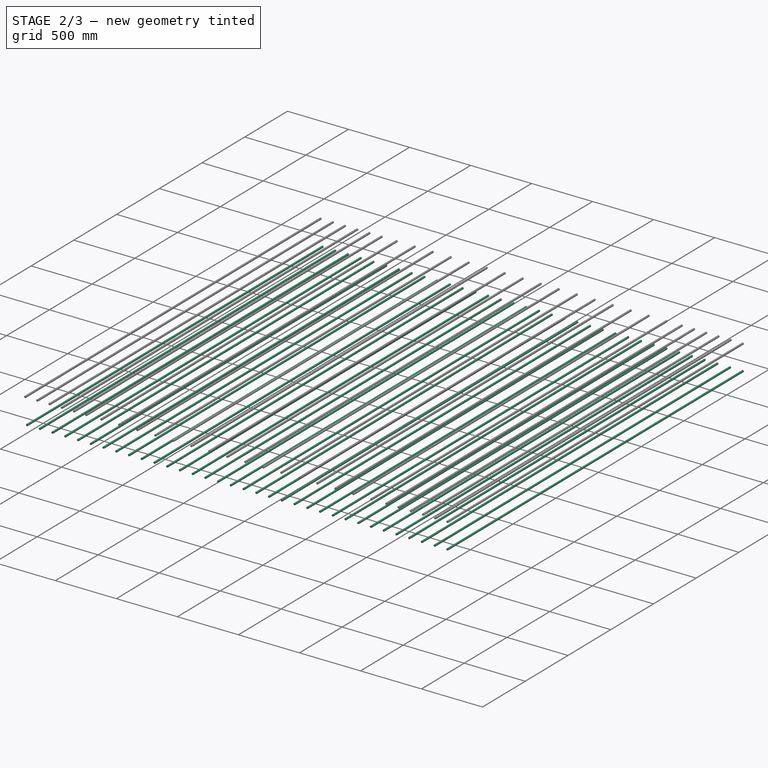
[diagram: stage 2 of 3 — iso view after this stage's code; geometry added in this stage tinted green]
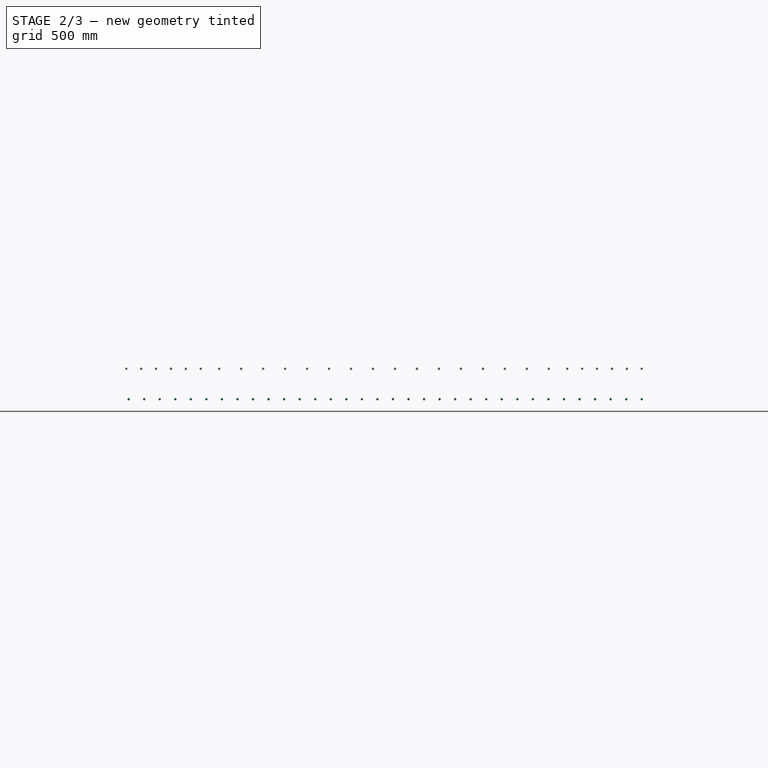
[diagram: stage 2 of 3 — front view after this stage's code; geometry added in this stage tinted green]
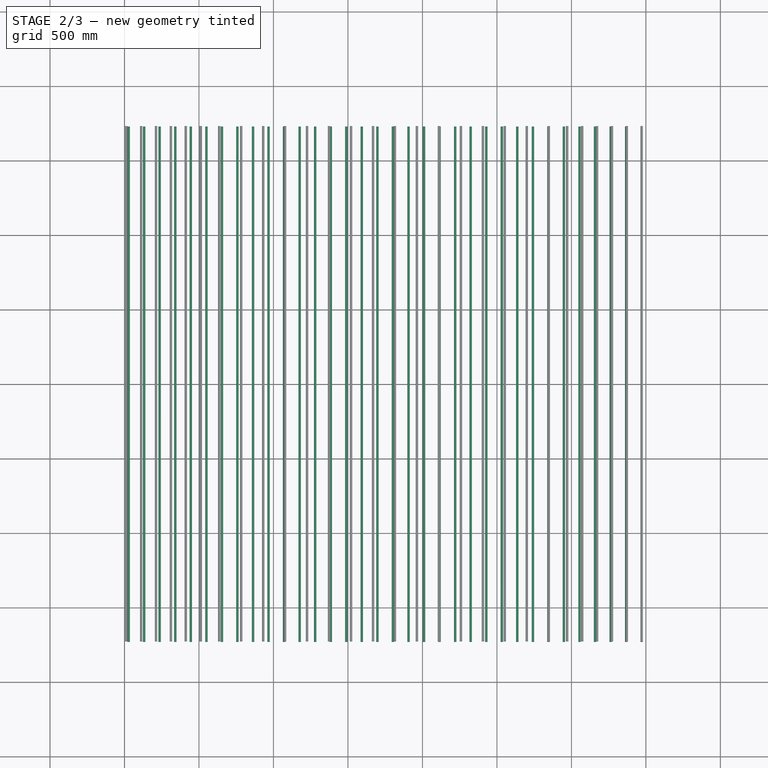
[diagram: stage 2 of 3 — top view after this stage's code; geometry added in this stage tinted green]
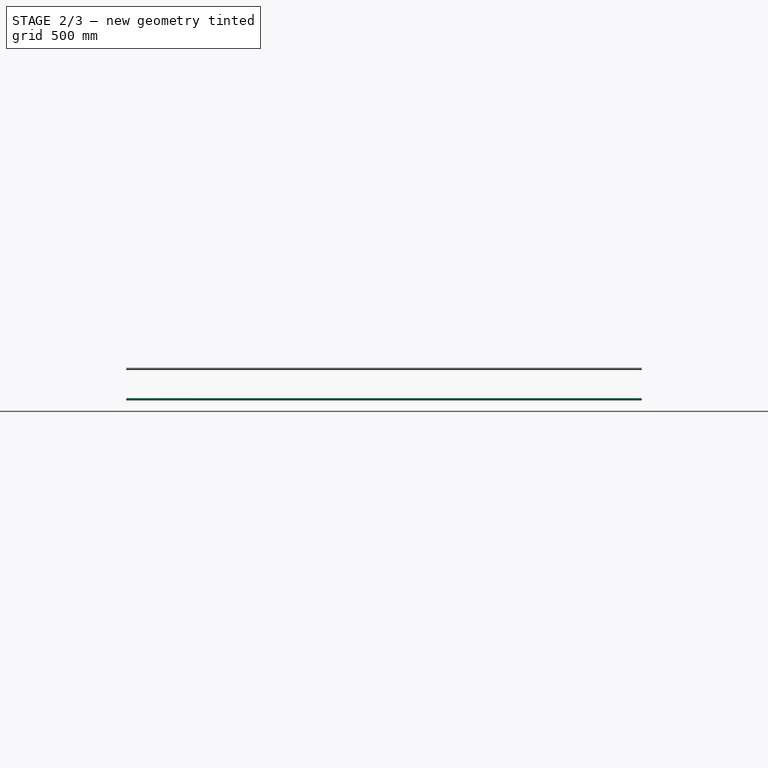
[diagram: stage 2 of 3 — right view after this stage's code; geometry added in this stage tinted green]
FEATURE [TechDraw::DrawSVGTemplate] Template
  EditableTexts = AUTHOR_NAME=AUTHOR NAME; DN=DN; DRAWING_TITLE=DRAWING TITLE; FC-DATE=DD/MM/YYYY; FC-REV=REV A; FC-SC=SCALE; FC-SH=X / Y; FC-SI=A3; FreeCAD_DRAWING=FreeCAD DRAWING; PN=PN
  Height = 297
  Orientation = 1
  Width = 420
FEATURE [TechDraw::DrawSVGTemplate] Template002
  EditableTexts = AUTHOR_NAME=AUTHOR NAME; DN=DN; DRAWING_TITLE=DRAWING TITLE; FC-DATE=DD/MM/YYYY; FC-REV=REV A; FC-SC=SCALE; FC-SH=X / Y; FC-SI=A3; FreeCAD_DRAWING=FreeCAD DRAWING; PN=PN
  Height = 297
  Orientation = 1
  Width = 420
FEATURE [TechDraw::DrawSVGTemplate] Template004
  Height = 297
  Orientation = 1
  Width = 420
FEATURE [TechDraw::DrawSVGTemplate] Template005
  Height = 297
  Orientation = 1
  Width = 420
FEATURE [Sketcher::SketchObject] Sketch002
  MapMode = 5
  Placement = pos=(3500,0,0) rot=(0.57735,0.57735,0.57735;2.0944rad)
  Support = -> [Structure]
  sketch-geometry (1):
    g0: LineSegment StartX=-1730 StartY=-102 StartZ=0 EndX=1730 EndY=-102 EndZ=0
FEATURE [Part::FeaturePython] Rebar002  label="StraightRebar002"  # Arch/BIM 110 (typed FeaturePython)
  Amount = 34
  AmountCheck = false
  Base = -> Sketch002
  Cover = 40
  CoverAlong = Bottom Side
  Diameter = 16
  Direction = (0,0,0)
  Distance = 0
  FrontCover = 20
  HorizontalArea = 0
  Host = -> Structure
  IfcType = 110
  LeftBottomCover = 20
  Length = 3460
  Mark = Rebar
  MoveBase = false
  MoveWithHost = false
  OffsetEnd = 28
  OffsetStart = 28
  Orientation = Horizontal
  PerimeterLength = 0
  PlacementList = 34 placements: arithmetic series from (-28,0,0) step (-104.364,0,0) to (-3472,0,0)
  RebarShape = 0
  RightTopCover = 20
  Rounding = 0
  Spacing = 104.364
  TotalLength = 117640
  TrueSpacing = 100
  VerticalArea = 0
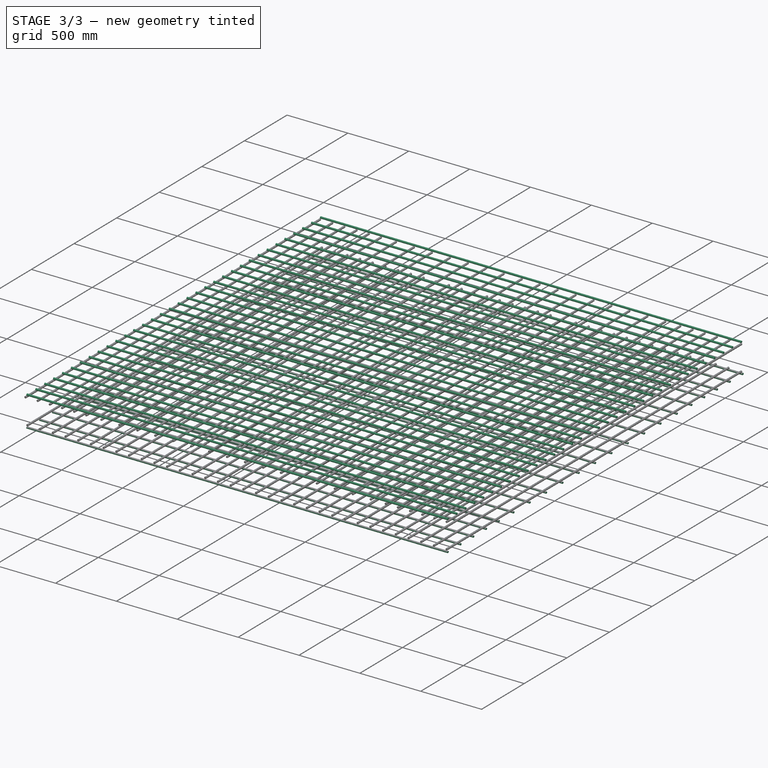
[diagram: stage 3 of 3 — iso view after this stage's code; geometry added in this stage tinted green]
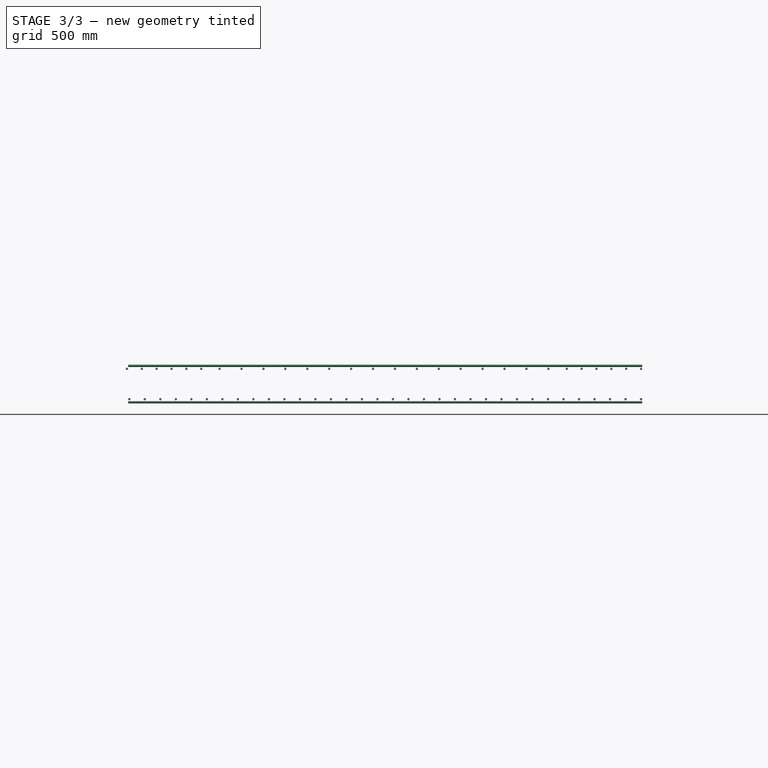
[diagram: stage 3 of 3 — front view after this stage's code; geometry added in this stage tinted green]
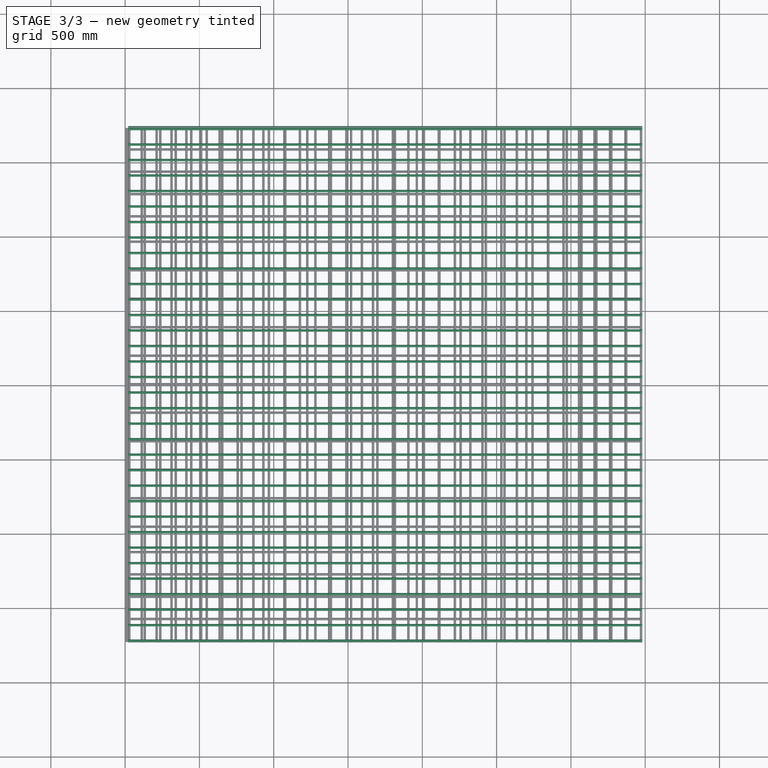
[diagram: stage 3 of 3 — top view after this stage's code; geometry added in this stage tinted green]
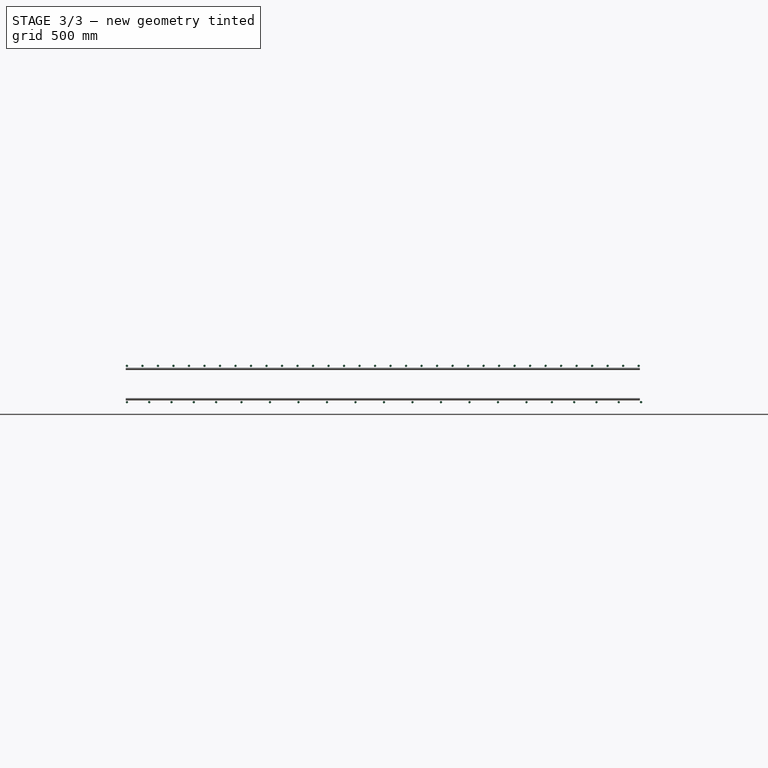
[diagram: stage 3 of 3 — right view after this stage's code; geometry added in this stage tinted green]
FEATURE [Sketcher::SketchObject] Sketch
  MapMode = 5
  Placement = pos=(0,-1750,0) rot=(1,0,0;1.5708rad)
  Support = -> [Structure]
  sketch-geometry (1):
    g0: LineSegment StartX=20 StartY=-122 StartZ=0 EndX=3480 EndY=-122 EndZ=0
FEATURE [Part::FeaturePython] Rebar  label="StraightRebar"  # Arch/BIM 110 (typed FeaturePython)
  Amount = 21
  AmountCheck = true
  Base = -> Sketch
  Cover = 20
  CoverAlong = Bottom Side
  CustomSpacing = 5@150.0+11@191.8181818181818+5@150.0
  Diameter = 16
  Direction = (0,0,0)
  Distance = 0
  FrontCover = 20
  HorizontalArea = 0
  Host = -> Structure
  IfcType = 110
  LeftBottomCover = 20
  Length = 3460
  Mark = sb
  MoveBase = false
  MoveWithHost = false
  OffsetEnd = 28
  OffsetStart = 28
  Orientation = Horizontal
  PerimeterLength = 0
  PlacementList = 21 placements: [(0,28,-6.21725e-15),(0,178,-3.95239e-14),(0,328,-7.28306e-14),(0,478,-1.06137e-13),(0,628,-1.39444e-13),(0,798.909,-1.77393e-13),(0,990.727,-2.19986e-13),(0,1182.55,-2.62578e-13),(0,1374.36,-3.0517e-13),(0,1566.18,-3.47762e-13),(0,1758,-3.90354e-13),(0,1949.82,-4.32947e-13),(0,2141.64,-4.75539e-13),(0,2333.45,-5.18131e-13),(0,2525.27,-5.60723e-13),(0,2717.09,-6.03315e-13),(0,2888,-6.41265e-13),+4 more]
  RebarShape = 0
  RightTopCover = 20
  Rounding = 0
  Spacing = 0
  TotalLength = 72660
  TrueSpacing = 28
  VerticalArea = 0
FEATURE [Sketcher::SketchObject] Sketch001
  MapMode = 5
  Placement = pos=(0,-1750,0) rot=(1,0,0;1.5708rad)
  Support = -> [Structure]
  sketch-geometry (1):
    g0: LineSegment StartX=20 StartY=122 StartZ=0 EndX=3480 EndY=122 EndZ=0
FEATURE [Part::FeaturePython] Rebar001  label="StraightRebar001"  # Arch/BIM 110 (typed FeaturePython)
  Amount = 34
  AmountCheck = false
  Base = -> Sketch001
  Cover = 20
  CoverAlong = Top Side
  Diameter = 16
  Direction = (0,0,0)
  Distance = 0
  FrontCover = 20
  HorizontalArea = 0
  Host = -> Structure
  IfcType = 110
  LeftBottomCover = 20
  Length = 3460
  Mark = st
  MoveBase = false
  MoveWithHost = false
  OffsetEnd = 28
  OffsetStart = 28
  Orientation = Horizontal
  PerimeterLength = 0
  PlacementList = 34 placements: arithmetic series from (0,28,-6.21725e-15) step (0,104.364,-2.31734e-14) to (0,3472,-7.70939e-13)
  RebarShape = 0
  RightTopCover = 20
  Rounding = 0
  Spacing = 104.364
  TotalLength = 117640
  TrueSpacing = 100
  VerticalArea = 0
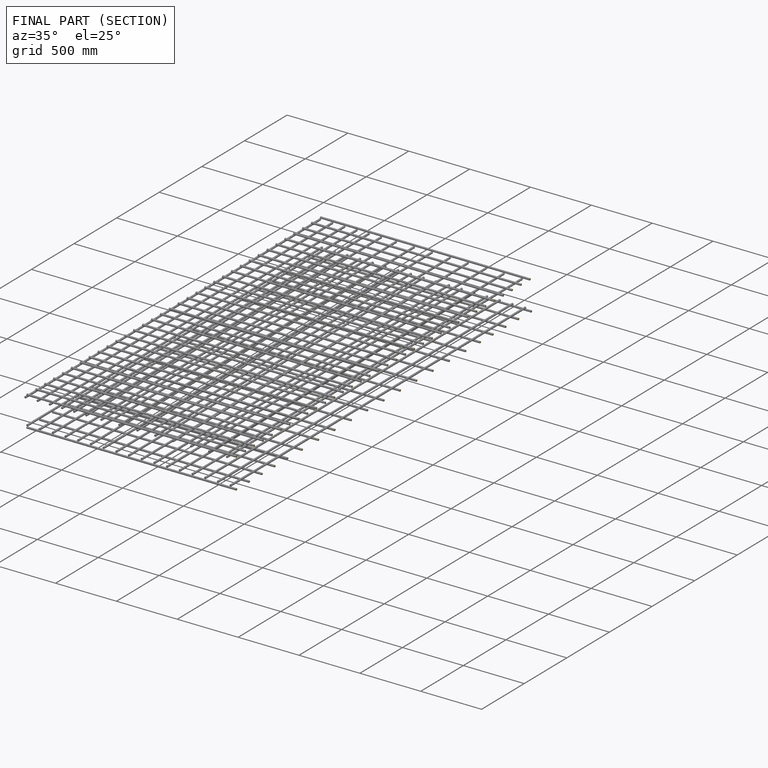
[diagram: finished part — half-section view (interior)]
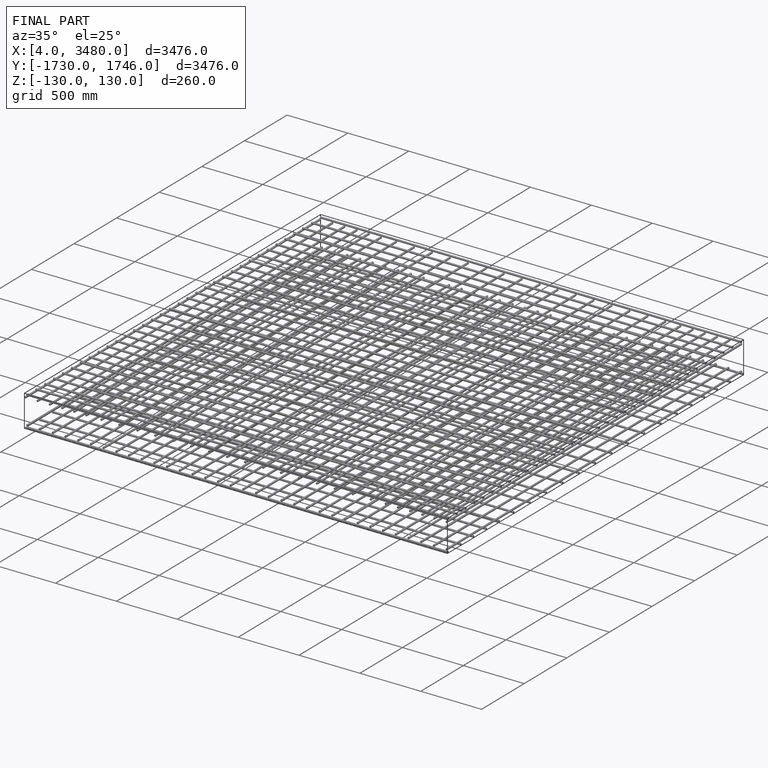
[diagram: finished part — iso view with bounding-box wireframe]
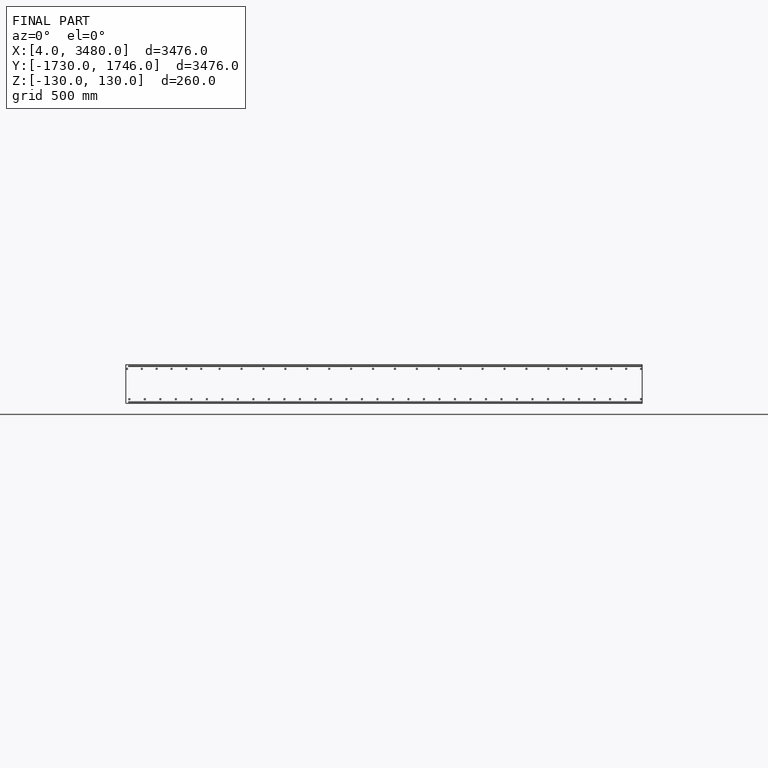
[diagram: finished part — front view with bounding-box wireframe]
